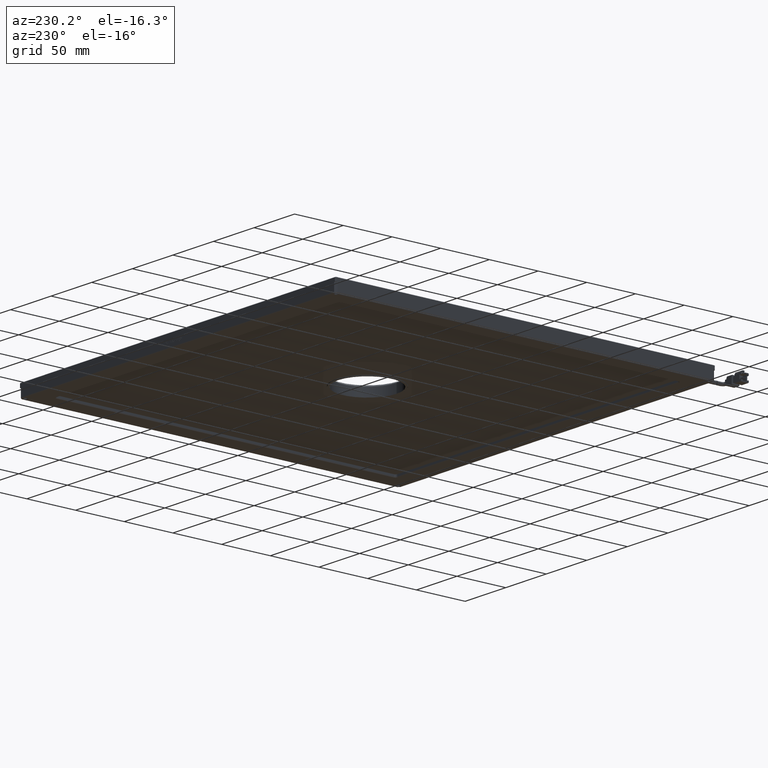
[diagram: clean part render]
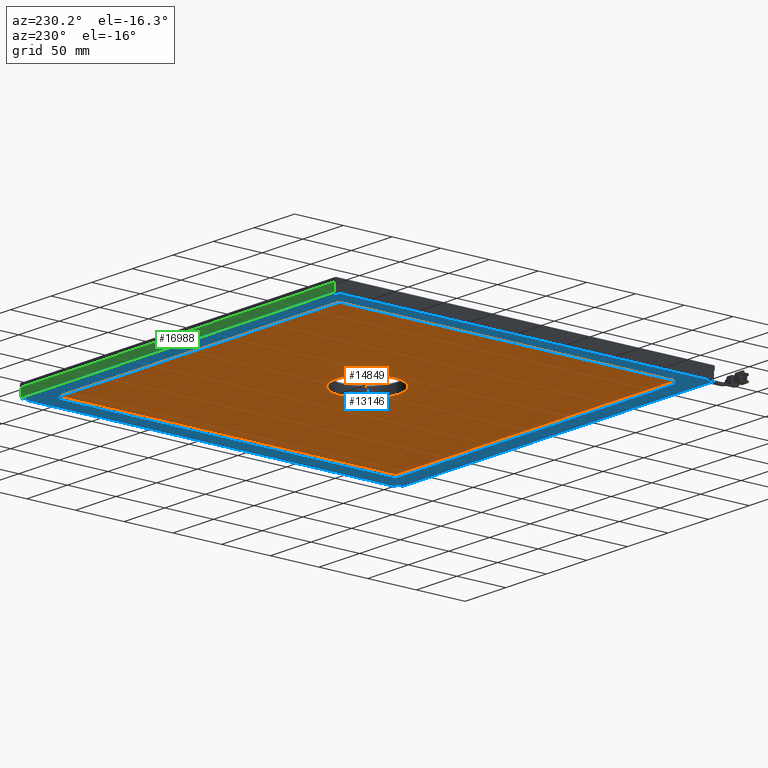
[diagram: same view with three faces highlighted in distinct colors, each labeled with its STEP entity id]
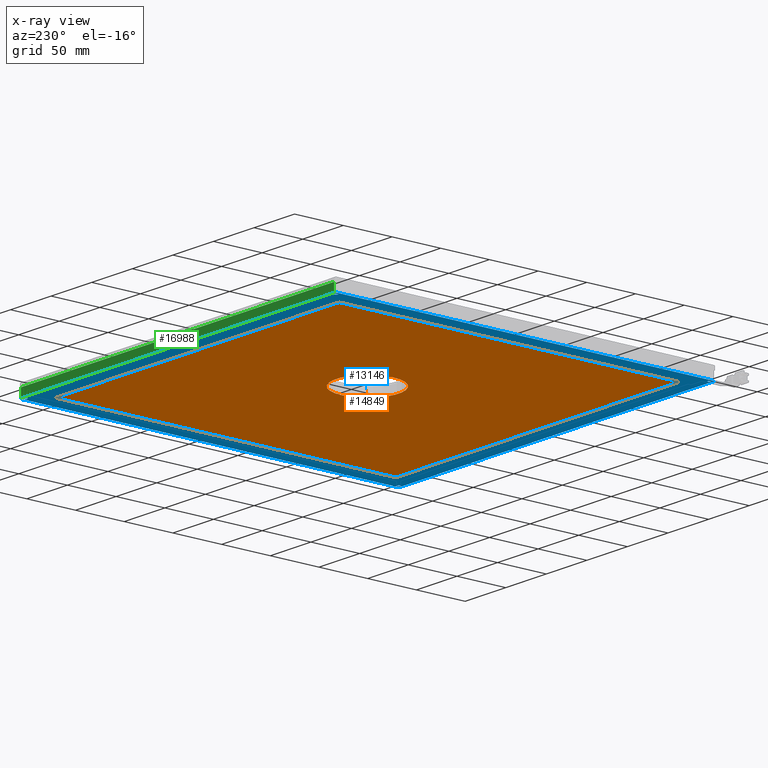
[diagram: x-ray of the same camera — body ghosted, the three highlighted faces saturated]
A machine part, auxiliary view with three faces highlighted in distinct colors.
The next image is the same camera in x-ray (body ghosted, the three faces saturated) — at least one of them is partly hidden behind the body in this view.
Their STEP definitions:

[orange] entity #14849 — the highlighted planar face has unit normal (0, -0, 1).
#88 = CARTESIAN_POINT ( 'NONE',  ( 146.8515982014608900, 201.4229729729716800, -1.750000000000003300 ) ) ;
#147 = CARTESIAN_POINT ( 'NONE',  ( -218.1484017985391100, 204.4229729729716500, -1.750000000000003300 ) ) ;
#606 = ORIENTED_EDGE ( 'NONE', *, *, #16970, .F. ) ;
#609 = EDGE_CURVE ( 'NONE', #14144, #17903, #8026, .T. ) ;
#638 = ORIENTED_EDGE ( 'NONE', *, *, #15592, .F. ) ;
#956 = DIRECTION ( 'NONE',  ( 0.0000000000000000000, -0.0000000000000000000, 1.000000000000000000 ) ) ;
#1628 = DIRECTION ( 'NONE',  ( -0.0000000000000000000, -0.0000000000000000000, 1.000000000000000000 ) ) ;
#1665 = ORIENTED_EDGE ( 'NONE', *, *, #13360, .F. ) ;
#1905 = DIRECTION ( 'NONE',  ( 1.000000000000000000, 0.0000000000000000000, 0.0000000000000000000 ) ) ;
#2080 = CARTESIAN_POINT ( 'NONE',  ( -215.1484017985391100, 201.4229729729716500, -1.750000000000003300 ) ) ;
#2157 = CARTESIAN_POINT ( 'NONE',  ( 149.8515982014608900, -160.5770270270282900, -1.750000000000003300 ) ) ;
#2232 = DIRECTION ( 'NONE',  ( -1.000000000000000000, 0.0000000000000000000, 0.0000000000000000000 ) ) ;
#2240 = AXIS2_PLACEMENT_3D ( 'NONE', #13960, #15433, #1905 ) ;
#2304 = CARTESIAN_POINT ( 'NONE',  ( -218.1484017985391100, 204.4229729729716800, -1.750000000000003300 ) ) ;
#3033 = ORIENTED_EDGE ( 'NONE', *, *, #8561, .F. ) ;
#3260 = DIRECTION ( 'NONE',  ( 1.000000000000000000, 0.0000000000000000000, 0.0000000000000000000 ) ) ;
#3487 = VERTEX_POINT ( 'NONE', #19599 ) ;
#4207 = CARTESIAN_POINT ( 'NONE',  ( -218.1484017985391100, 204.4229729729716500, -1.750000000000003300 ) ) ;
#4436 = VERTEX_POINT ( 'NONE', #12329 ) ;
#4961 = CIRCLE ( 'NONE', #12614, 3.000000000000002700 ) ;
#5361 = EDGE_LOOP ( 'NONE', ( #11833, #606 ) ) ;
#5413 = DIRECTION ( 'NONE',  ( 0.0000000000000000000, 1.000000000000000000, 0.0000000000000000000 ) ) ;
#5655 = VECTOR ( 'NONE', #17173, 1000.000000000000000 ) ;
#6738 = DIRECTION ( 'NONE',  ( -1.000000000000000000, 0.0000000000000000000, 0.0000000000000000000 ) ) ;
#6872 = VERTEX_POINT ( 'NONE', #14048 ) ;
#7073 = VECTOR ( 'NONE', #5413, 1000.000000000000000 ) ;
#7531 = LINE ( 'NONE', #147, #5655 ) ;
#7718 = CIRCLE ( 'NONE', #12429, 3.000000000000002700 ) ;
#7841 = AXIS2_PLACEMENT_3D ( 'NONE', #8359, #8500, #6738 ) ;
#8026 = CIRCLE ( 'NONE', #2240, 32.10000000000000100 ) ;
#8359 = CARTESIAN_POINT ( 'NONE',  ( 146.8515982014608900, -160.5770270270282900, -1.750000000000003300 ) ) ;
#8500 = DIRECTION ( 'NONE',  ( -0.0000000000000000000, -0.0000000000000000000, 1.000000000000000000 ) ) ;
#8561 = EDGE_CURVE ( 'NONE', #18263, #4436, #7531, .T. ) ;
#8754 = DIRECTION ( 'NONE',  ( -1.000000000000000000, 0.0000000000000000000, 0.0000000000000000000 ) ) ;
#8961 = CARTESIAN_POINT ( 'NONE',  ( -215.1484017985391100, -163.5770270270283500, -1.750000000000003300 ) ) ;
#9269 = PLANE ( 'NONE',  #17751 ) ;
#10050 = CARTESIAN_POINT ( 'NONE',  ( -218.1484017985391100, -163.5770270270283500, -1.750000000000003300 ) ) ;
#10130 = CARTESIAN_POINT ( 'NONE',  ( -215.1484017985391100, 204.4229729729716500, -1.750000000000003300 ) ) ;
#10693 = ORIENTED_EDGE ( 'NONE', *, *, #13380, .F. ) ;
#11327 = ORIENTED_EDGE ( 'NONE', *, *, #14073, .F. ) ;
#11546 = ORIENTED_EDGE ( 'NONE', *, *, #18652, .F. ) ;
#11609 = LINE ( 'NONE', #12324, #7073 ) ;
#11694 = CARTESIAN_POINT ( 'NONE',  ( -34.14840179853907600, 20.42297297297170300, -1.750000000000003300 ) ) ;
#11833 = ORIENTED_EDGE ( 'NONE', *, *, #609, .F. ) ;
#12324 = CARTESIAN_POINT ( 'NONE',  ( 149.8515982014608900, 204.4229729729716500, -1.750000000000003300 ) ) ;
#12329 = CARTESIAN_POINT ( 'NONE',  ( -218.1484017985391100, -160.5770270270283200, -1.750000000000003300 ) ) ;
#12409 = LINE ( 'NONE', #2304, #13776 ) ;
#12429 = AXIS2_PLACEMENT_3D ( 'NONE', #15006, #1628, #18756 ) ;
#12492 = DIRECTION ( 'NONE',  ( -1.000000000000000000, -0.0000000000000000000, 0.0000000000000000000 ) ) ;
#12500 = VECTOR ( 'NONE', #18808, 1000.000000000000000 ) ;
#12614 = AXIS2_PLACEMENT_3D ( 'NONE', #88, #19003, #8754 ) ;
#13360 = EDGE_CURVE ( 'NONE', #3487, #18200, #21861, .T. ) ;
#13380 = EDGE_CURVE ( 'NONE', #4436, #18595, #7718, .T. ) ;
#13481 = DIRECTION ( 'NONE',  ( 0.0000000000000000000, 0.0000000000000000000, -1.000000000000000000 ) ) ;
#13776 = VECTOR ( 'NONE', #12492, 1000.000000000000000 ) ;
#13960 = CARTESIAN_POINT ( 'NONE',  ( -34.14840179853907600, 20.42297297297170300, -1.750000000000003300 ) ) ;
#14048 = CARTESIAN_POINT ( 'NONE',  ( 146.8515982014608900, 204.4229729729716800, -1.750000000000003300 ) ) ;
#14073 = EDGE_CURVE ( 'NONE', #18595, #3487, #17570, .T. ) ;
#14144 = VERTEX_POINT ( 'NONE', #15416 ) ;
#14847 = EDGE_LOOP ( 'NONE', ( #638, #17271, #17705, #11546, #1665, #11327, #10693, #3033 ) ) ;
#14849 = ADVANCED_FACE ( 'NONE', ( #16147, #17747 ), #9269, .F. ) ;
#15006 = CARTESIAN_POINT ( 'NONE',  ( -215.1484017985391100, -160.5770270270283200, -1.750000000000003300 ) ) ;
#15416 = CARTESIAN_POINT ( 'NONE',  ( -2.048401798539073200, 20.42297297297170300, -1.750000000000003300 ) ) ;
#15433 = DIRECTION ( 'NONE',  ( 0.0000000000000000000, 0.0000000000000000000, -1.000000000000000000 ) ) ;
#15453 = EDGE_CURVE ( 'NONE', #19499, #6872, #4961, .T. ) ;
#15485 = EDGE_CURVE ( 'NONE', #6872, #20812, #12409, .T. ) ;
#15592 = EDGE_CURVE ( 'NONE', #20812, #18263, #19631, .T. ) ;
#15768 = CARTESIAN_POINT ( 'NONE',  ( -218.1484017985391100, 201.4229729729716500, -1.750000000000003300 ) ) ;
#15922 = DIRECTION ( 'NONE',  ( -0.0000000000000000000, -0.0000000000000000000, 1.000000000000000000 ) ) ;
#16147 = FACE_OUTER_BOUND ( 'NONE', #14847, .T. ) ;
#16970 = EDGE_CURVE ( 'NONE', #17903, #14144, #20534, .T. ) ;
#17173 = DIRECTION ( 'NONE',  ( -0.0000000000000000000, -1.000000000000000000, -0.0000000000000000000 ) ) ;
#17271 = ORIENTED_EDGE ( 'NONE', *, *, #15485, .F. ) ;
#17515 = AXIS2_PLACEMENT_3D ( 'NONE', #11694, #13481, #3260 ) ;
#17570 = LINE ( 'NONE', #10050, #12500 ) ;
#17705 = ORIENTED_EDGE ( 'NONE', *, *, #15453, .F. ) ;
#17747 = FACE_BOUND ( 'NONE', #5361, .T. ) ;
#17751 = AXIS2_PLACEMENT_3D ( 'NONE', #4207, #956, #21278 ) ;
#17903 = VERTEX_POINT ( 'NONE', #21109 ) ;
#18200 = VERTEX_POINT ( 'NONE', #2157 ) ;
#18263 = VERTEX_POINT ( 'NONE', #15768 ) ;
#18595 = VERTEX_POINT ( 'NONE', #8961 ) ;
#18652 = EDGE_CURVE ( 'NONE', #18200, #19499, #11609, .T. ) ;
#18756 = DIRECTION ( 'NONE',  ( -1.000000000000000000, 0.0000000000000000000, 0.0000000000000000000 ) ) ;
#18808 = DIRECTION ( 'NONE',  ( 1.000000000000000000, 0.0000000000000000000, -0.0000000000000000000 ) ) ;
#19003 = DIRECTION ( 'NONE',  ( -0.0000000000000000000, -0.0000000000000000000, 1.000000000000000000 ) ) ;
#19074 = AXIS2_PLACEMENT_3D ( 'NONE', #2080, #15922, #2232 ) ;
#19499 = VERTEX_POINT ( 'NONE', #21316 ) ;
#19599 = CARTESIAN_POINT ( 'NONE',  ( 146.8515982014608900, -163.5770270270283200, -1.750000000000003300 ) ) ;
#19631 = CIRCLE ( 'NONE', #19074, 3.000000000000002700 ) ;
#20534 = CIRCLE ( 'NONE', #17515, 32.10000000000000100 ) ;
#20812 = VERTEX_POINT ( 'NONE', #10130 ) ;
#21109 = CARTESIAN_POINT ( 'NONE',  ( -66.24840179853907800, 20.42297297297170600, -1.750000000000003300 ) ) ;
#21278 = DIRECTION ( 'NONE',  ( 1.000000000000000000, 0.0000000000000000000, -0.0000000000000000000 ) ) ;
#21316 = CARTESIAN_POINT ( 'NONE',  ( 149.8515982014608900, 201.4229729729717100, -1.750000000000003300 ) ) ;
#21861 = CIRCLE ( 'NONE', #7841, 3.000000000000002700 ) ;

[blue] entity #13146 — the highlighted planar face has unit normal (0, -0, 1).
#101 = CIRCLE ( 'NONE', #20144, 1.750000000000001600 ) ;
#228 = CIRCLE ( 'NONE', #10366, 1.750000000000001600 ) ;
#347 = EDGE_CURVE ( 'NONE', #5329, #415, #8572, .T. ) ;
#415 = VERTEX_POINT ( 'NONE', #2865 ) ;
#476 = CARTESIAN_POINT ( 'NONE',  ( -207.1484017985376900, -152.5770270270270100, -4.750000000056844300 ) ) ;
#563 = LINE ( 'NONE', #14424, #8798 ) ;
#659 = AXIS2_PLACEMENT_3D ( 'NONE', #4610, #14826, #8316 ) ;
#743 = CARTESIAN_POINT ( 'NONE',  ( 138.8515982014623700, -152.5770270270270100, -4.750000000056844300 ) ) ;
#874 = DIRECTION ( 'NONE',  ( 0.0000000000000000000, 0.0000000000000000000, -1.000000000000000000 ) ) ;
#1259 = ORIENTED_EDGE ( 'NONE', *, *, #12723, .F. ) ;
#1385 = CARTESIAN_POINT ( 'NONE',  ( 160.3515982014622500, 215.4229729729729600, -4.750000000000000900 ) ) ;
#1421 = VECTOR ( 'NONE', #18310, 1000.000000000000000 ) ;
#1531 = CARTESIAN_POINT ( 'NONE',  ( 159.1015982014623100, 211.9229729729730100, -4.750000000000000900 ) ) ;
#1617 = EDGE_CURVE ( 'NONE', #3136, #12626, #20742, .T. ) ;
#1768 = EDGE_LOOP ( 'NONE', ( #16857, #16411 ) ) ;
#1849 = EDGE_CURVE ( 'NONE', #14077, #12111, #228, .T. ) ;
#1964 = CARTESIAN_POINT ( 'NONE',  ( -228.6484017985376600, 213.2158661917865200, -4.750000000000002700 ) ) ;
#1978 = VECTOR ( 'NONE', #10180, 1000.000000000000000 ) ;
#2290 = CARTESIAN_POINT ( 'NONE',  ( -227.3984017985384000, 211.9229729729723600, -4.750000000000000900 ) ) ;
#2294 = DIRECTION ( 'NONE',  ( -0.0000000000000000000, -1.000000000000000000, -0.0000000000000000000 ) ) ;
#2314 = ORIENTED_EDGE ( 'NONE', *, *, #5176, .F. ) ;
#2398 = LINE ( 'NONE', #21380, #16511 ) ;
#2439 = CARTESIAN_POINT ( 'NONE',  ( -229.1484017985377200, 215.4229729729729600, -4.750000000000000900 ) ) ;
#2506 = DIRECTION ( 'NONE',  ( -1.000000000000000000, 0.0000000000000000000, 0.0000000000000000000 ) ) ;
#2518 = DIRECTION ( 'NONE',  ( 0.0000000000000000000, 0.0000000000000000000, -1.000000000000000000 ) ) ;
#2571 = CARTESIAN_POINT ( 'NONE',  ( -228.6484017985376600, -172.3699202458403500, -4.750000000000000900 ) ) ;
#2637 = AXIS2_PLACEMENT_3D ( 'NONE', #12709, #2518, #17939 ) ;
#2865 = CARTESIAN_POINT ( 'NONE',  ( 138.8515982014623700, 195.9229729730003600, -4.749999999943157500 ) ) ;
#2987 = DIRECTION ( 'NONE',  ( 0.0000000000000000000, 1.000000000000000000, 0.0000000000000000000 ) ) ;
#2997 = DIRECTION ( 'NONE',  ( 0.0000000000000000000, 1.000000000000000000, 0.0000000000000000000 ) ) ;
#3081 = CARTESIAN_POINT ( 'NONE',  ( -229.1484017985377200, 195.9229729729730700, -4.750000000000000900 ) ) ;
#3136 = VERTEX_POINT ( 'NONE', #19899 ) ;
#3195 = CARTESIAN_POINT ( 'NONE',  ( 158.6444914202759000, -174.0770270270269300, -4.750000000000000900 ) ) ;
#3250 = EDGE_CURVE ( 'NONE', #16076, #14213, #7501, .T. ) ;
#3253 = CARTESIAN_POINT ( 'NONE',  ( -226.9412950173511900, 214.9229729729729000, -4.750000000000000900 ) ) ;
#3268 = ORIENTED_EDGE ( 'NONE', *, *, #7056, .F. ) ;
#3302 = DIRECTION ( 'NONE',  ( 0.7071067811865474600, 0.7071067811865474600, 0.0000000000000000000 ) ) ;
#3391 = EDGE_CURVE ( 'NONE', #12379, #19166, #15467, .T. ) ;
#3886 = CIRCLE ( 'NONE', #17451, 1.750000000000001600 ) ;
#3938 = EDGE_CURVE ( 'NONE', #6854, #5961, #18392, .T. ) ;
#4044 = EDGE_LOOP ( 'NONE', ( #16372, #16719, #3268, #2314, #20625, #5483, #19252, #8818 ) ) ;
#4216 = DIRECTION ( 'NONE',  ( -1.000000000000000000, -0.0000000000000000000, 0.0000000000000000000 ) ) ;
#4290 = LINE ( 'NONE', #5738, #19772 ) ;
#4398 = VECTOR ( 'NONE', #2294, 1000.000000000000000 ) ;
#4505 = EDGE_LOOP ( 'NONE', ( #5030, #6357, #12847, #13139, #14622, #15279, #16363, #8766 ) ) ;
#4582 = VERTEX_POINT ( 'NONE', #4722 ) ;
#4610 = CARTESIAN_POINT ( 'NONE',  ( 138.8515982014623700, 193.4229729729730700, -4.749999999943157500 ) ) ;
#4722 = CARTESIAN_POINT ( 'NONE',  ( 141.3515982014339200, 193.4229729729730700, -4.749999999971575600 ) ) ;
#4817 = CARTESIAN_POINT ( 'NONE',  ( 138.8515982014623900, -155.0770270270553800, -4.750000000028419000 ) ) ;
#4901 = EDGE_CURVE ( 'NONE', #19632, #13053, #15067, .T. ) ;
#5030 = ORIENTED_EDGE ( 'NONE', *, *, #1617, .F. ) ;
#5176 = EDGE_CURVE ( 'NONE', #14213, #11303, #19623, .T. ) ;
#5208 = CIRCLE ( 'NONE', #19187, 1.750000000000001600 ) ;
#5292 = EDGE_LOOP ( 'NONE', ( #14110, #14879 ) ) ;
#5328 = CIRCLE ( 'NONE', #659, 2.499999999995977400 ) ;
#5329 = VERTEX_POINT ( 'NONE', #14267 ) ;
#5483 = ORIENTED_EDGE ( 'NONE', *, *, #12753, .F. ) ;
#5594 = DIRECTION ( 'NONE',  ( 1.000000000000000000, 0.0000000000000000000, 0.0000000000000000000 ) ) ;
#5722 = CIRCLE ( 'NONE', #8651, 2.500000000056401600 ) ;
#5738 = CARTESIAN_POINT ( 'NONE',  ( 160.3515982014622500, 213.2158661917865200, -4.750000000000000900 ) ) ;
#5805 = EDGE_CURVE ( 'NONE', #15736, #21188, #5208, .T. ) ;
#5807 = VECTOR ( 'NONE', #18071, 1000.000000000000100 ) ;
#5961 = VERTEX_POINT ( 'NONE', #9430 ) ;
#6357 = ORIENTED_EDGE ( 'NONE', *, *, #12435, .F. ) ;
#6588 = VERTEX_POINT ( 'NONE', #8222 ) ;
#6622 = CARTESIAN_POINT ( 'NONE',  ( -209.6484017985365300, 193.4229729729730700, -4.750000000000000900 ) ) ;
#6634 = VERTEX_POINT ( 'NONE', #4817 ) ;
#6854 = VERTEX_POINT ( 'NONE', #2290 ) ;
#7056 = EDGE_CURVE ( 'NONE', #11303, #6588, #19165, .T. ) ;
#7430 = CARTESIAN_POINT ( 'NONE',  ( -228.6484017985376600, -172.3699202458403800, -4.749999999999997300 ) ) ;
#7449 = CARTESIAN_POINT ( 'NONE',  ( -225.6484017985377200, -171.0770270270269900, -4.750000000000000900 ) ) ;
#7501 = LINE ( 'NONE', #3253, #14433 ) ;
#7555 = VECTOR ( 'NONE', #2997, 1000.000000000000000 ) ;
#7693 = VERTEX_POINT ( 'NONE', #11018 ) ;
#7743 = FACE_BOUND ( 'NONE', #10280, .T. ) ;
#8222 = CARTESIAN_POINT ( 'NONE',  ( -226.9412950173510000, -174.0770270270269900, -4.750000000000015100 ) ) ;
#8308 = CARTESIAN_POINT ( 'NONE',  ( -229.1484017985377200, 214.9229729729729600, -4.750000000000000900 ) ) ;
#8316 = DIRECTION ( 'NONE',  ( -1.000000000000000000, 0.0000000000000000000, 0.0000000000000000000 ) ) ;
#8388 = VECTOR ( 'NONE', #3302, 1000.000000000000100 ) ;
#8396 = CIRCLE ( 'NONE', #15149, 2.499999999999558100 ) ;
#8547 = CARTESIAN_POINT ( 'NONE',  ( 155.6015982014623100, 211.9229729729730100, -4.750000000000000900 ) ) ;
#8572 = LINE ( 'NONE', #3081, #1421 ) ;
#8651 = AXIS2_PLACEMENT_3D ( 'NONE', #476, #12376, #17511 ) ;
#8766 = ORIENTED_EDGE ( 'NONE', *, *, #14807, .F. ) ;
#8798 = VECTOR ( 'NONE', #4216, 1000.000000000000000 ) ;
#8818 = ORIENTED_EDGE ( 'NONE', *, *, #19082, .F. ) ;
#8824 = DIRECTION ( 'NONE',  ( 1.000000000000000000, 0.0000000000000000000, 0.0000000000000000000 ) ) ;
#9074 = CARTESIAN_POINT ( 'NONE',  ( 159.1015982014643000, -171.0770270270250000, -4.750000000000000900 ) ) ;
#9114 = DIRECTION ( 'NONE',  ( 0.0000000000000000000, 0.0000000000000000000, -1.000000000000000000 ) ) ;
#9195 = VERTEX_POINT ( 'NONE', #13954 ) ;
#9338 = FACE_BOUND ( 'NONE', #20401, .T. ) ;
#9418 = CARTESIAN_POINT ( 'NONE',  ( -207.1484017985376900, 193.4229729729730700, -4.750000000000000900 ) ) ;
#9427 = CARTESIAN_POINT ( 'NONE',  ( -227.3984017985377200, -171.0770270270269900, -4.750000000000000900 ) ) ;
#9430 = CARTESIAN_POINT ( 'NONE',  ( -223.8984017985384000, 211.9229729729723600, -4.750000000000000900 ) ) ;
#9723 = CARTESIAN_POINT ( 'NONE',  ( -223.8984017985376900, -171.0770270270269900, -4.750000000000000900 ) ) ;
#9731 = EDGE_CURVE ( 'NONE', #21188, #15736, #101, .T. ) ;
#9884 = CARTESIAN_POINT ( 'NONE',  ( -229.1484017985377200, -174.0770270270269900, -4.750000000000000900 ) ) ;
#10134 = CARTESIAN_POINT ( 'NONE',  ( -207.1484017985376900, -155.0770270270399500, -4.750000000014211700 ) ) ;
#10180 = DIRECTION ( 'NONE',  ( -1.000000000000000000, -0.0000000000000000000, 0.0000000000000000000 ) ) ;
#10280 = EDGE_LOOP ( 'NONE', ( #20035, #1259 ) ) ;
#10366 = AXIS2_PLACEMENT_3D ( 'NONE', #20788, #17577, #5594 ) ;
#10605 = CIRCLE ( 'NONE', #20948, 2.499999999995977400 ) ;
#10771 = DIRECTION ( 'NONE',  ( 0.0000000000000000000, 0.0000000000000000000, -1.000000000000000000 ) ) ;
#10829 = AXIS2_PLACEMENT_3D ( 'NONE', #15262, #18497, #21991 ) ;
#11010 = EDGE_CURVE ( 'NONE', #415, #4582, #5328, .T. ) ;
#11018 = CARTESIAN_POINT ( 'NONE',  ( 160.3515982014623100, 213.2158661917865200, -4.750000000000006200 ) ) ;
#11021 = EDGE_CURVE ( 'NONE', #6588, #19632, #20771, .T. ) ;
#11303 = VERTEX_POINT ( 'NONE', #7430 ) ;
#11458 = ORIENTED_EDGE ( 'NONE', *, *, #9731, .F. ) ;
#11884 = CARTESIAN_POINT ( 'NONE',  ( 158.6444914202759000, -174.0770270270268700, -4.750000000000000900 ) ) ;
#11996 = DIRECTION ( 'NONE',  ( 1.000000000000000000, 0.0000000000000000000, 0.0000000000000000000 ) ) ;
#12111 = VERTEX_POINT ( 'NONE', #1531 ) ;
#12285 = FACE_BOUND ( 'NONE', #5292, .T. ) ;
#12376 = DIRECTION ( 'NONE',  ( 0.0000000000000000000, 0.0000000000000000000, -1.000000000000000000 ) ) ;
#12379 = VERTEX_POINT ( 'NONE', #9074 ) ;
#12435 = EDGE_CURVE ( 'NONE', #19241, #3136, #5722, .T. ) ;
#12626 = VERTEX_POINT ( 'NONE', #6622 ) ;
#12709 = CARTESIAN_POINT ( 'NONE',  ( 157.3515982014623100, 211.9229729729730100, -4.750000000000000900 ) ) ;
#12723 = EDGE_CURVE ( 'NONE', #19166, #12379, #19291, .T. ) ;
#12753 = EDGE_CURVE ( 'NONE', #9195, #16076, #16082, .T. ) ;
#12786 = PLANE ( 'NONE',  #17554 ) ;
#12825 = AXIS2_PLACEMENT_3D ( 'NONE', #14130, #10771, #17709 ) ;
#12847 = ORIENTED_EDGE ( 'NONE', *, *, #13194, .F. ) ;
#12904 = VERTEX_POINT ( 'NONE', #20043 ) ;
#13053 = VERTEX_POINT ( 'NONE', #18414 ) ;
#13139 = ORIENTED_EDGE ( 'NONE', *, *, #17315, .F. ) ;
#13146 = ADVANCED_FACE ( 'NONE', ( #19768, #13894, #12285, #17338, #9338, #7743 ), #12786, .F. ) ;
#13194 = EDGE_CURVE ( 'NONE', #6634, #19241, #563, .T. ) ;
#13627 = DIRECTION ( 'NONE',  ( -0.7071067811865532300, -0.7071067811865416900, 0.0000000000000000000 ) ) ;
#13894 = FACE_BOUND ( 'NONE', #4505, .T. ) ;
#13954 = CARTESIAN_POINT ( 'NONE',  ( 158.6444914202758400, 214.9229729729729300, -4.750000000000014200 ) ) ;
#14077 = VERTEX_POINT ( 'NONE', #8547 ) ;
#14110 = ORIENTED_EDGE ( 'NONE', *, *, #15717, .F. ) ;
#14130 = CARTESIAN_POINT ( 'NONE',  ( 157.3515982014643000, -171.0770270270250000, -4.750000000000000900 ) ) ;
#14188 = CARTESIAN_POINT ( 'NONE',  ( -228.6484017985376600, 215.4229729729729600, -4.750000000000000900 ) ) ;
#14213 = VERTEX_POINT ( 'NONE', #1964 ) ;
#14267 = CARTESIAN_POINT ( 'NONE',  ( -207.1484017985376900, 195.9229729729719300, -4.750000000000000900 ) ) ;
#14424 = CARTESIAN_POINT ( 'NONE',  ( -229.1484017985377200, -155.0770270270269600, -4.750000000000000900 ) ) ;
#14433 = VECTOR ( 'NONE', #13627, 1000.000000000000100 ) ;
#14622 = ORIENTED_EDGE ( 'NONE', *, *, #16868, .F. ) ;
#14752 = EDGE_CURVE ( 'NONE', #5961, #6854, #3886, .T. ) ;
#14802 = CIRCLE ( 'NONE', #2637, 1.750000000000001600 ) ;
#14807 = EDGE_CURVE ( 'NONE', #12626, #5329, #8396, .T. ) ;
#14826 = DIRECTION ( 'NONE',  ( 0.0000000000000000000, 0.0000000000000000000, -1.000000000000000000 ) ) ;
#14879 = ORIENTED_EDGE ( 'NONE', *, *, #1849, .F. ) ;
#15016 = LINE ( 'NONE', #1385, #7555 ) ;
#15067 = LINE ( 'NONE', #11884, #8388 ) ;
#15149 = AXIS2_PLACEMENT_3D ( 'NONE', #9418, #874, #21129 ) ;
#15262 = CARTESIAN_POINT ( 'NONE',  ( -225.6484017985384000, 211.9229729729723600, -4.750000000000000900 ) ) ;
#15279 = ORIENTED_EDGE ( 'NONE', *, *, #11010, .F. ) ;
#15467 = CIRCLE ( 'NONE', #12825, 1.750000000000001600 ) ;
#15717 = EDGE_CURVE ( 'NONE', #12111, #14077, #14802, .T. ) ;
#15736 = VERTEX_POINT ( 'NONE', #9427 ) ;
#15845 = CARTESIAN_POINT ( 'NONE',  ( -225.6484017985384000, 211.9229729729723600, -4.750000000000000900 ) ) ;
#15948 = DIRECTION ( 'NONE',  ( 0.0000000000000000000, 0.0000000000000000000, -1.000000000000000000 ) ) ;
#16076 = VERTEX_POINT ( 'NONE', #18980 ) ;
#16082 = LINE ( 'NONE', #8308, #1978 ) ;
#16086 = DIRECTION ( 'NONE',  ( -0.7071067811865474600, 0.7071067811865474600, 0.0000000000000000000 ) ) ;
#16134 = DIRECTION ( 'NONE',  ( 1.000000000000000000, 0.0000000000000000000, 0.0000000000000000000 ) ) ;
#16228 = VECTOR ( 'NONE', #18280, 1000.000000000000000 ) ;
#16363 = ORIENTED_EDGE ( 'NONE', *, *, #347, .F. ) ;
#16372 = ORIENTED_EDGE ( 'NONE', *, *, #4901, .F. ) ;
#16411 = ORIENTED_EDGE ( 'NONE', *, *, #3938, .F. ) ;
#16511 = VECTOR ( 'NONE', #21307, 1000.000000000000000 ) ;
#16607 = EDGE_CURVE ( 'NONE', #7693, #9195, #4290, .T. ) ;
#16719 = ORIENTED_EDGE ( 'NONE', *, *, #11021, .F. ) ;
#16857 = ORIENTED_EDGE ( 'NONE', *, *, #14752, .F. ) ;
#16868 = EDGE_CURVE ( 'NONE', #4582, #12904, #2398, .T. ) ;
#17315 = EDGE_CURVE ( 'NONE', #12904, #6634, #10605, .T. ) ;
#17338 = FACE_BOUND ( 'NONE', #1768, .T. ) ;
#17451 = AXIS2_PLACEMENT_3D ( 'NONE', #15845, #19288, #8824 ) ;
#17511 = DIRECTION ( 'NONE',  ( -1.000000000000000000, 0.0000000000000000000, 0.0000000000000000000 ) ) ;
#17554 = AXIS2_PLACEMENT_3D ( 'NONE', #2439, #18021, #19671 ) ;
#17577 = DIRECTION ( 'NONE',  ( 0.0000000000000000000, 0.0000000000000000000, -1.000000000000000000 ) ) ;
#17709 = DIRECTION ( 'NONE',  ( 1.000000000000000000, 0.0000000000000000000, 0.0000000000000000000 ) ) ;
#17939 = DIRECTION ( 'NONE',  ( 1.000000000000000000, 0.0000000000000000000, 0.0000000000000000000 ) ) ;
#18021 = DIRECTION ( 'NONE',  ( 0.0000000000000000000, -0.0000000000000000000, 1.000000000000000000 ) ) ;
#18071 = DIRECTION ( 'NONE',  ( 0.7071067811865647800, -0.7071067811865302500, 0.0000000000000000000 ) ) ;
#18280 = DIRECTION ( 'NONE',  ( 1.000000000000000000, 0.0000000000000000000, -0.0000000000000000000 ) ) ;
#18289 = CARTESIAN_POINT ( 'NONE',  ( -209.6484017985376600, 215.4229729729729600, -4.750000000000000900 ) ) ;
#18310 = DIRECTION ( 'NONE',  ( 1.000000000000000000, 0.0000000000000000000, -0.0000000000000000000 ) ) ;
#18392 = CIRCLE ( 'NONE', #10829, 1.750000000000001600 ) ;
#18414 = CARTESIAN_POINT ( 'NONE',  ( 160.3515982014622500, -172.3699202458405200, -4.750000000000000900 ) ) ;
#18497 = DIRECTION ( 'NONE',  ( 0.0000000000000000000, 0.0000000000000000000, -1.000000000000000000 ) ) ;
#18633 = DIRECTION ( 'NONE',  ( 0.0000000000000000000, 0.0000000000000000000, -1.000000000000000000 ) ) ;
#18704 = CARTESIAN_POINT ( 'NONE',  ( 157.3515982014643000, -171.0770270270250000, -4.750000000000000900 ) ) ;
#18973 = AXIS2_PLACEMENT_3D ( 'NONE', #18704, #18633, #11996 ) ;
#18980 = CARTESIAN_POINT ( 'NONE',  ( -226.9412950173511900, 214.9229729729729000, -4.750000000000000900 ) ) ;
#19082 = EDGE_CURVE ( 'NONE', #13053, #7693, #15016, .T. ) ;
#19165 = LINE ( 'NONE', #2571, #5807 ) ;
#19166 = VERTEX_POINT ( 'NONE', #20592 ) ;
#19187 = AXIS2_PLACEMENT_3D ( 'NONE', #7449, #15948, #21173 ) ;
#19241 = VERTEX_POINT ( 'NONE', #10134 ) ;
#19252 = ORIENTED_EDGE ( 'NONE', *, *, #16607, .F. ) ;
#19288 = DIRECTION ( 'NONE',  ( 0.0000000000000000000, 0.0000000000000000000, -1.000000000000000000 ) ) ;
#19291 = CIRCLE ( 'NONE', #18973, 1.750000000000001600 ) ;
#19598 = CARTESIAN_POINT ( 'NONE',  ( -225.6484017985377200, -171.0770270270269900, -4.750000000000000900 ) ) ;
#19623 = LINE ( 'NONE', #14188, #4398 ) ;
#19632 = VERTEX_POINT ( 'NONE', #3195 ) ;
#19671 = DIRECTION ( 'NONE',  ( 1.000000000000000000, 0.0000000000000000000, -0.0000000000000000000 ) ) ;
#19768 = FACE_OUTER_BOUND ( 'NONE', #4044, .T. ) ;
#19772 = VECTOR ( 'NONE', #16086, 1000.000000000000100 ) ;
#19899 = CARTESIAN_POINT ( 'NONE',  ( -209.6484017985660800, -152.5770270270270100, -4.750000000028422600 ) ) ;
#19977 = VECTOR ( 'NONE', #2987, 1000.000000000000000 ) ;
#20035 = ORIENTED_EDGE ( 'NONE', *, *, #3391, .F. ) ;
#20043 = CARTESIAN_POINT ( 'NONE',  ( 141.3515982014480100, -152.5770270270270100, -4.750000000014211700 ) ) ;
#20144 = AXIS2_PLACEMENT_3D ( 'NONE', #19598, #21137, #16134 ) ;
#20401 = EDGE_LOOP ( 'NONE', ( #11458, #21923 ) ) ;
#20592 = CARTESIAN_POINT ( 'NONE',  ( 155.6015982014643000, -171.0770270270250000, -4.750000000000000900 ) ) ;
#20625 = ORIENTED_EDGE ( 'NONE', *, *, #3250, .F. ) ;
#20742 = LINE ( 'NONE', #18289, #19977 ) ;
#20771 = LINE ( 'NONE', #9884, #16228 ) ;
#20788 = CARTESIAN_POINT ( 'NONE',  ( 157.3515982014623100, 211.9229729729730100, -4.750000000000000900 ) ) ;
#20948 = AXIS2_PLACEMENT_3D ( 'NONE', #743, #9114, #2506 ) ;
#21129 = DIRECTION ( 'NONE',  ( -1.000000000000000000, 0.0000000000000000000, 0.0000000000000000000 ) ) ;
#21137 = DIRECTION ( 'NONE',  ( 0.0000000000000000000, 0.0000000000000000000, -1.000000000000000000 ) ) ;
#21173 = DIRECTION ( 'NONE',  ( 1.000000000000000000, 0.0000000000000000000, 0.0000000000000000000 ) ) ;
#21188 = VERTEX_POINT ( 'NONE', #9723 ) ;
#21307 = DIRECTION ( 'NONE',  ( -0.0000000000000000000, -1.000000000000000000, -0.0000000000000000000 ) ) ;
#21380 = CARTESIAN_POINT ( 'NONE',  ( 141.3515982014623400, 215.4229729729729600, -4.750000000000000900 ) ) ;
#21923 = ORIENTED_EDGE ( 'NONE', *, *, #5805, .F. ) ;
#21991 = DIRECTION ( 'NONE',  ( 1.000000000000000000, 0.0000000000000000000, 0.0000000000000000000 ) ) ;

[green] entity #16988 — the highlighted planar face has unit normal (0, -1, 0).
#22 = CARTESIAN_POINT ( 'NONE',  ( -20.04567694938189600, 215.4229729729729900, -0.3525222033905484100 ) ) ;
#57 = EDGE_CURVE ( 'NONE', #18799, #10318, #21847, .T. ) ;
#66 = CARTESIAN_POINT ( 'NONE',  ( -39.00380568337389100, 215.4229729729729900, 1.980758486460843000 ) ) ;
#94 = EDGE_CURVE ( 'NONE', #2852, #15772, #5123, .T. ) ;
#110 = ORIENTED_EDGE ( 'NONE', *, *, #5181, .F. ) ;
#142 = CARTESIAN_POINT ( 'NONE',  ( -39.40765692073453200, 215.4229729729729900, 1.980758486460843000 ) ) ;
#158 = VECTOR ( 'NONE', #20402, 1000.000000000000000 ) ;
#186 = VERTEX_POINT ( 'NONE', #6078 ) ;
#197 = CARTESIAN_POINT ( 'NONE',  ( -20.39382459675879000, 215.4229729729729900, 1.220682907480230600 ) ) ;
#216 = CARTESIAN_POINT ( 'NONE',  ( -227.1484017985377800, 215.4229729729729600, 4.250000000000000000 ) ) ;
#235 = VECTOR ( 'NONE', #3712, 1000.000000000000000 ) ;
#245 = ORIENTED_EDGE ( 'NONE', *, *, #17617, .F. ) ;
#257 = CARTESIAN_POINT ( 'NONE',  ( -20.38402876117204300, 215.4229729729729900, -0.8095496506593247200 ) ) ;
#286 = EDGE_CURVE ( 'NONE', #3973, #21312, #13880, .T. ) ;
#312 = VECTOR ( 'NONE', #5174, 1000.000000000000000 ) ;
#319 = B_SPLINE_CURVE_WITH_KNOTS ( 'NONE', 3,
 ( #2458, #14444, #4159, #612 ),
 .UNSPECIFIED., .F., .F.,
 ( 4, 4 ),
 ( 11.00000000000000000, 12.00000000000000000 ),
 .UNSPECIFIED. ) ;
#334 = CARTESIAN_POINT ( 'NONE',  ( -28.83223725224829100, 215.4229729729729900, -0.7676891855430412200 ) ) ;
#368 = CARTESIAN_POINT ( 'NONE',  ( -35.34725888556347700, 215.4229729729729900, -0.7745645235636144900 ) ) ;
#429 = CARTESIAN_POINT ( 'NONE',  ( -21.45792005376265600, 215.4229729729729900, -0.06652639484538980200 ) ) ;
#475 = B_SPLINE_CURVE_WITH_KNOTS ( 'NONE', 3,
 ( #4807, #6602, #11828, #10009 ),
 .UNSPECIFIED., .F., .F.,
 ( 4, 4 ),
 ( 1.000000000000000000, 2.000000000000000000 ),
 .UNSPECIFIED. ) ;
#520 = LINE ( 'NONE', #10957, #11974 ) ;
#558 = VERTEX_POINT ( 'NONE', #11882 ) ;
#584 = CARTESIAN_POINT ( 'NONE',  ( -35.69552822033914200, 215.4229729729729900, -0.3909449994965452600 ) ) ;
#593 = CARTESIAN_POINT ( 'NONE',  ( -20.32549712244832900, 215.4229729729729900, 0.1323108144569429300 ) ) ;
#612 = CARTESIAN_POINT ( 'NONE',  ( -34.64749549994969200, 215.4229729729729900, 1.513706163294159500 ) ) ;
#619 = B_SPLINE_CURVE_WITH_KNOTS ( 'NONE', 3,
 ( #14573, #12942, #16063, #813 ),
 .UNSPECIFIED., .F., .F.,
 ( 4, 4 ),
 ( 2.000000000000000000, 3.000000000000000000 ),
 .UNSPECIFIED. ) ;
#622 = CARTESIAN_POINT ( 'NONE',  ( -20.69646115706161600, 215.4229729729729900, -0.1921077901942125400 ) ) ;
#666 = CARTESIAN_POINT ( 'NONE',  ( -24.39660988610439700, 215.4229729729729900, -0.7781543018220982200 ) ) ;
#714 = ORIENTED_EDGE ( 'NONE', *, *, #21259, .F. ) ;
#741 = CARTESIAN_POINT ( 'NONE',  ( -33.41741843126391800, 215.4229729729729900, -0.7781543018220982200 ) ) ;
#766 = DIRECTION ( 'NONE',  ( -0.0000000000000000000, -0.0000000000000000000, 1.000000000000000000 ) ) ;
#791 = CARTESIAN_POINT ( 'NONE',  ( -32.94880025927906800, 215.4229729729729900, -0.7781543018220982200 ) ) ;
#803 = EDGE_CURVE ( 'NONE', #2224, #20421, #18731, .T. ) ;
#813 = CARTESIAN_POINT ( 'NONE',  ( -20.39382459675879000, 215.4229729729729900, 1.220682907480230600 ) ) ;
#828 = EDGE_CURVE ( 'NONE', #1374, #13963, #6443, .T. ) ;
#856 = VECTOR ( 'NONE', #4584, 1000.000000000000000 ) ;
#897 = ORIENTED_EDGE ( 'NONE', *, *, #19212, .F. ) ;
#901 = CARTESIAN_POINT ( 'NONE',  ( -28.43839598669931600, 215.4229729729729900, 0.3625433725964744000 ) ) ;
#908 = CARTESIAN_POINT ( 'NONE',  ( -32.94880025927906800, 215.4229729729729900, 0.6346363958523171300 ) ) ;
#936 = DIRECTION ( 'NONE',  ( -0.0000000000000000000, -0.0000000000000000000, -1.000000000000000000 ) ) ;
#989 = DIRECTION ( 'NONE',  ( 1.000000000000000000, -0.0000000000000000000, -0.0000000000000000000 ) ) ;
#995 = EDGE_CURVE ( 'NONE', #21312, #18603, #15569, .T. ) ;
#1011 = CARTESIAN_POINT ( 'NONE',  ( -22.38542140584473800, 215.4229729729729900, -0.8095496506593247200 ) ) ;
#1045 = VERTEX_POINT ( 'NONE', #22115 ) ;
#1151 = DIRECTION ( 'NONE',  ( -0.0000000000000000000, -0.0000000000000000000, -1.000000000000000000 ) ) ;
#1170 = ORIENTED_EDGE ( 'NONE', *, *, #13660, .F. ) ;
#1177 = DIRECTION ( 'NONE',  ( -0.0000000000000000000, -0.0000000000000000000, 1.000000000000000000 ) ) ;
#1224 = CARTESIAN_POINT ( 'NONE',  ( -22.35615558648299500, 215.4229729729729900, -0.4851310460081692500 ) ) ;
#1250 = CARTESIAN_POINT ( 'NONE',  ( -27.68667208188588400, 215.4229729729729900, 0.6869619772476576200 ) ) ;
#1374 = VERTEX_POINT ( 'NONE', #3821 ) ;
#1378 = CARTESIAN_POINT ( 'NONE',  ( -36.26003297673055700, 215.4229729729729900, -1.166926694210035400 ) ) ;
#1380 = CARTESIAN_POINT ( 'NONE',  ( -27.23758473737539600, 215.4229729729729900, 0.6869619772476576200 ) ) ;
#1393 = ORIENTED_EDGE ( 'NONE', *, *, #8632, .F. ) ;
#1407 = CARTESIAN_POINT ( 'NONE',  ( -34.28967370438449100, 215.4229729729729900, -0.3804798832174605100 ) ) ;
#1416 = ORIENTED_EDGE ( 'NONE', *, *, #12241, .F. ) ;
#1426 = CARTESIAN_POINT ( 'NONE',  ( -31.99203308783507500, 215.4229729729729900, 0.6346363958523171300 ) ) ;
#1433 = EDGE_CURVE ( 'NONE', #2154, #16347, #4232, .T. ) ;
#1478 = ORIENTED_EDGE ( 'NONE', *, *, #57, .F. ) ;
#1510 = ORIENTED_EDGE ( 'NONE', *, *, #5910, .F. ) ;
#1536 = LINE ( 'NONE', #9931, #12978 ) ;
#1548 = VERTEX_POINT ( 'NONE', #11407 ) ;
#1562 = EDGE_CURVE ( 'NONE', #10490, #14103, #10132, .T. ) ;
#1574 = ORIENTED_EDGE ( 'NONE', *, *, #10360, .F. ) ;
#1603 = CARTESIAN_POINT ( 'NONE',  ( -34.67682216301074000, 215.4229729729729900, -0.8095496506593247200 ) ) ;
#1651 = CARTESIAN_POINT ( 'NONE',  ( -36.26003297673055700, 215.4229729729729900, -0.7630448680717161200 ) ) ;
#1656 = EDGE_CURVE ( 'NONE', #10831, #1548, #2892, .T. ) ;
#1660 = EDGE_CURVE ( 'NONE', #20359, #5490, #7942, .T. ) ;
#1698 = ORIENTED_EDGE ( 'NONE', *, *, #8366, .F. ) ;
#1711 = CARTESIAN_POINT ( 'NONE',  ( -24.12323914516326400, 215.4229729729729900, -0.7781543018220982200 ) ) ;
#1783 = CARTESIAN_POINT ( 'NONE',  ( -36.26003297673055700, 215.4229729729729900, -0.7630448680717161200 ) ) ;
#1837 = ORIENTED_EDGE ( 'NONE', *, *, #17590, .F. ) ;
#1951 = ORIENTED_EDGE ( 'NONE', *, *, #4409, .F. ) ;
#1987 = CARTESIAN_POINT ( 'NONE',  ( -39.61561569222257600, 215.4229729729729900, -0.6406999872131669000 ) ) ;
#2111 = CARTESIAN_POINT ( 'NONE',  ( -29.48302145992801500, 215.4229729729729900, -0.8095496506593247200 ) ) ;
#2154 = VERTEX_POINT ( 'NONE', #11462 ) ;
#2168 = CARTESIAN_POINT ( 'NONE',  ( -19.52491572709944400, 215.4229729729729900, -0.1083868599616455400 ) ) ;
#2224 = VERTEX_POINT ( 'NONE', #14590 ) ;
#2242 = VERTEX_POINT ( 'NONE', #4394 ) ;
#2272 = ORIENTED_EDGE ( 'NONE', *, *, #13317, .F. ) ;
#2284 = VERTEX_POINT ( 'NONE', #18626 ) ;
#2321 = CARTESIAN_POINT ( 'NONE',  ( -36.26003297673055700, 215.4229729729729900, 1.772769131143797600 ) ) ;
#2323 = B_SPLINE_CURVE_WITH_KNOTS ( 'NONE', 3,
 ( #4161, #2609, #19692, #14592 ),
 .UNSPECIFIED., .F., .F.,
 ( 4, 4 ),
 ( 2.000000000000000000, 3.000000000000000000 ),
 .UNSPECIFIED. ) ;
#2342 = DIRECTION ( 'NONE',  ( 1.000000000000000000, -0.0000000000000000000, -0.0000000000000000000 ) ) ;
#2356 = LINE ( 'NONE', #6527, #21557 ) ;
#2358 = CARTESIAN_POINT ( 'NONE',  ( -33.43694925873827400, 215.4229729729729900, 1.203342453180600300 ) ) ;
#2413 = CARTESIAN_POINT ( 'NONE',  ( -20.37429376928443100, 215.4229729729729900, -0.4851310460081692500 ) ) ;
#2458 = CARTESIAN_POINT ( 'NONE',  ( -35.72144763623960300, 215.4229729729729900, 0.3416131400383326500 ) ) ;
#2467 = ORIENTED_EDGE ( 'NONE', *, *, #9159, .F. ) ;
#2488 = CARTESIAN_POINT ( 'NONE',  ( -25.55835948047966300, 215.4229729729729900, -0.4642008134500275100 ) ) ;
#2609 = CARTESIAN_POINT ( 'NONE',  ( -22.90618262812708000, 215.4229729729729900, -0.1850803429254144200 ) ) ;
#2616 = VERTEX_POINT ( 'NONE', #741 ) ;
#2629 = CARTESIAN_POINT ( 'NONE',  ( -26.46310528902493400, 215.4229729729729900, 0.4567294191081261400 ) ) ;
#2631 = CARTESIAN_POINT ( 'NONE',  ( -32.48018208729416800, 215.4229729729729900, 1.513706163294159500 ) ) ;
#2650 = ORIENTED_EDGE ( 'NONE', *, *, #3748, .F. ) ;
#2669 = EDGE_CURVE ( 'NONE', #16983, #15256, #14018, .T. ) ;
#2697 = ORIENTED_EDGE ( 'NONE', *, *, #9344, .F. ) ;
#2710 = ORIENTED_EDGE ( 'NONE', *, *, #16238, .F. ) ;
#2728 = CARTESIAN_POINT ( 'NONE',  ( -25.08974130849487200, 215.4229729729729900, 1.471845698177876000 ) ) ;
#2799 = ORIENTED_EDGE ( 'NONE', *, *, #21876, .F. ) ;
#2843 = VERTEX_POINT ( 'NONE', #22020 ) ;
#2852 = VERTEX_POINT ( 'NONE', #22093 ) ;
#2856 = CARTESIAN_POINT ( 'NONE',  ( -20.07816748480626100, 215.4229729729729900, 0.5788731454466900000 ) ) ;
#2868 = EDGE_CURVE ( 'NONE', #19310, #13706, #20446, .T. ) ;
#2892 = LINE ( 'NONE', #8328, #17018 ) ;
#3011 = ORIENTED_EDGE ( 'NONE', *, *, #18887, .F. ) ;
#3065 = CARTESIAN_POINT ( 'NONE',  ( -24.12323914516326400, 215.4229729729729900, -0.7781543018220982200 ) ) ;
#3088 = CARTESIAN_POINT ( 'NONE',  ( -29.48302145992801500, 215.4229729729729900, 1.513706163294159500 ) ) ;
#3174 = DIRECTION ( 'NONE',  ( 1.000000000000000000, -0.0000000000000000000, -0.0000000000000000000 ) ) ;
#3208 = ORIENTED_EDGE ( 'NONE', *, *, #17461, .F. ) ;
#3275 = EDGE_LOOP ( 'NONE', ( #5559, #6132, #1510, #897, #19211, #16614, #2650, #20425, #12346, #14172, #4333, #12998, #19686, #11498 ) ) ;
#3331 = DIRECTION ( 'NONE',  ( -0.0000000000000000000, -0.0000000000000000000, 1.000000000000000000 ) ) ;
#3383 = CARTESIAN_POINT ( 'NONE',  ( -25.55835948047966300, 215.4229729729729900, 1.471845698177876000 ) ) ;
#3444 = CARTESIAN_POINT ( 'NONE',  ( -35.25282946425487300, 215.4229729729729900, 0.3520782563174174000 ) ) ;
#3467 = CARTESIAN_POINT ( 'NONE',  ( -25.08974130849487200, 215.4229729729729900, -0.4642008134500275100 ) ) ;
#3469 = CARTESIAN_POINT ( 'NONE',  ( -31.49092438042552900, 215.4229729729729900, 1.210217791201145800 ) ) ;
#3516 = EDGE_CURVE ( 'NONE', #186, #4630, #9047, .T. ) ;
#3636 = VERTEX_POINT ( 'NONE', #7989 ) ;
#3712 = DIRECTION ( 'NONE',  ( 1.000000000000000000, -0.0000000000000000000, -0.0000000000000000000 ) ) ;
#3722 = CARTESIAN_POINT ( 'NONE',  ( -34.67682216301074000, 215.4229729729729900, -0.4955961622872262500 ) ) ;
#3748 = EDGE_CURVE ( 'NONE', #20407, #1045, #20294, .T. ) ;
#3821 = CARTESIAN_POINT ( 'NONE',  ( -33.72005499156691100, 215.4229729729729900, 1.011380581898813100 ) ) ;
#3843 = CARTESIAN_POINT ( 'NONE',  ( -34.67682216301074000, 215.4229729729729900, -0.8095496506593247200 ) ) ;
#3901 = CARTESIAN_POINT ( 'NONE',  ( -34.64749549994969200, 215.4229729729729900, 1.513706163294159500 ) ) ;
#3951 = CARTESIAN_POINT ( 'NONE',  ( -21.22367181146931300, 215.4229729729729900, 0.6974270935267146100 ) ) ;
#3971 = EDGE_CURVE ( 'NONE', #10634, #2616, #17291, .T. ) ;
#3973 = VERTEX_POINT ( 'NONE', #13351 ) ;
#3978 = CARTESIAN_POINT ( 'NONE',  ( -35.72144763623960300, 215.4229729729729900, 0.3416131400383326500 ) ) ;
#4026 = VERTEX_POINT ( 'NONE', #17420 ) ;
#4036 = CARTESIAN_POINT ( 'NONE',  ( -33.72005499156691100, 215.4229729729729900, 1.011380581898813100 ) ) ;
#4121 = CARTESIAN_POINT ( 'NONE',  ( -33.41741843126391800, 215.4229729729729900, 0.5195201167825236300 ) ) ;
#4159 = CARTESIAN_POINT ( 'NONE',  ( -35.33746304997678300, 215.4229729729729900, 1.485748483467219700 ) ) ;
#4161 = CARTESIAN_POINT ( 'NONE',  ( -22.91263206025254500, 215.4229729729729900, 0.3730084888755591500 ) ) ;
#4205 = CARTESIAN_POINT ( 'NONE',  ( -22.91263206025254500, 215.4229729729729900, 0.3730084888755591500 ) ) ;
#4219 = VERTEX_POINT ( 'NONE', #20114 ) ;
#4232 = LINE ( 'NONE', #19501, #22105 ) ;
#4239 = CARTESIAN_POINT ( 'NONE',  ( -19.75283622466587000, 215.4229729729729900, 0.2510168717852479000 ) ) ;
#4251 = CARTESIAN_POINT ( 'NONE',  ( 160.8515982014623100, 215.4229729729730100, -4.250000000000000000 ) ) ;
#4285 = LINE ( 'NONE', #12990, #15197 ) ;
#4302 = EDGE_CURVE ( 'NONE', #5490, #17530, #20476, .T. ) ;
#4333 = ORIENTED_EDGE ( 'NONE', *, *, #7910, .F. ) ;
#4338 = CARTESIAN_POINT ( 'NONE',  ( -21.69563638691565900, 215.4229729729729900, 1.388124767945309000 ) ) ;
#4382 = ORIENTED_EDGE ( 'NONE', *, *, #11843, .F. ) ;
#4394 = CARTESIAN_POINT ( 'NONE',  ( -32.47044709540666900, 215.4229729729729900, 1.210217791201145800 ) ) ;
#4409 = EDGE_CURVE ( 'NONE', #10318, #20359, #7162, .T. ) ;
#4413 = EDGE_LOOP ( 'NONE', ( #7080, #19041, #1170, #2710, #10190, #11526, #20862, #15019 ) ) ;
#4421 = CARTESIAN_POINT ( 'NONE',  ( -23.02336759297299600, 215.4229729729729900, -0.7676891855430412200 ) ) ;
#4430 = CARTESIAN_POINT ( 'NONE',  ( -31.52341491585022800, 215.4229729729729900, 0.4985898842244096400 ) ) ;
#4464 = CARTESIAN_POINT ( 'NONE',  ( -23.66435596506602900, 215.4229729729729900, 1.471845698177876000 ) ) ;
#4480 = LINE ( 'NONE', #11902, #22090 ) ;
#4584 = DIRECTION ( 'NONE',  ( -0.0000000000000000000, -0.0000000000000000000, -1.000000000000000000 ) ) ;
#4630 = VERTEX_POINT ( 'NONE', #21579 ) ;
#4659 = EDGE_CURVE ( 'NONE', #18772, #15209, #15123, .T. ) ;
#4678 = DIRECTION ( 'NONE',  ( -0.0000000000000000000, -0.0000000000000000000, -1.000000000000000000 ) ) ;
#4748 = DIRECTION ( 'NONE',  ( -0.0000000000000000000, -0.0000000000000000000, -1.000000000000000000 ) ) ;
#4788 = CARTESIAN_POINT ( 'NONE',  ( -20.70303227658574100, 215.4229729729729900, 1.534636395852301300 ) ) ;
#4798 = CARTESIAN_POINT ( 'NONE',  ( -28.47106905322169700, 215.4229729729729900, 1.088226174110806800 ) ) ;
#4807 = CARTESIAN_POINT ( 'NONE',  ( -30.52764693315677000, 215.4229729729729900, 0.3625433725964744000 ) ) ;
#4876 = VECTOR ( 'NONE', #989, 1000.000000000000000 ) ;
#4908 = CARTESIAN_POINT ( 'NONE',  ( -36.87178794414439400, 215.4229729729729900, 1.980758486460843000 ) ) ;
#4939 = EDGE_CURVE ( 'NONE', #14336, #14288, #18881, .T. ) ;
#4954 = ORIENTED_EDGE ( 'NONE', *, *, #13979, .F. ) ;
#4994 = PLANE ( 'NONE',  #8784 ) ;
#5122 = ORIENTED_EDGE ( 'NONE', *, *, #2669, .F. ) ;
#5123 = LINE ( 'NONE', #15981, #10695 ) ;
#5174 = DIRECTION ( 'NONE',  ( -1.000000000000000000, -0.0000000000000000000, -0.0000000000000000000 ) ) ;
#5181 = EDGE_CURVE ( 'NONE', #14837, #9373, #8852, .T. ) ;
#5197 = B_SPLINE_CURVE_WITH_KNOTS ( 'NONE', 3,
 ( #12044, #17020, #142, #66 ),
 .UNSPECIFIED., .F., .F.,
 ( 4, 4 ),
 ( 7.000000000000000000, 8.000000000000000000 ),
 .UNSPECIFIED. ) ;
#5241 = CARTESIAN_POINT ( 'NONE',  ( -227.1484017985378000, 215.4229729729729600, 4.250000000000000000 ) ) ;
#5289 = CARTESIAN_POINT ( 'NONE',  ( -19.52491572709944400, 215.4229729729729900, -0.1083868599616455400 ) ) ;
#5316 = CARTESIAN_POINT ( 'NONE',  ( -39.00380568337389100, 215.4229729729729900, -1.374824313800371300 ) ) ;
#5344 = CARTESIAN_POINT ( 'NONE',  ( -19.46632324467665100, 215.4229729729729900, 0.8439387214337068500 ) ) ;
#5490 = VERTEX_POINT ( 'NONE', #8457 ) ;
#5515 = VECTOR ( 'NONE', #18783, 1000.000000000000000 ) ;
#5553 = CARTESIAN_POINT ( 'NONE',  ( -22.38542140584473800, 215.4229729729729900, -0.8095496506593247200 ) ) ;
#5559 = ORIENTED_EDGE ( 'NONE', *, *, #995, .F. ) ;
#5581 = CARTESIAN_POINT ( 'NONE',  ( -27.68667208188588400, 215.4229729729729900, 1.471845698177876000 ) ) ;
#5591 = VERTEX_POINT ( 'NONE', #20563 ) ;
#5605 = B_SPLINE_CURVE_WITH_KNOTS ( 'NONE', 3,
 ( #1011, #4421, #18507, #18293 ),
 .UNSPECIFIED., .F., .F.,
 ( 4, 4 ),
 ( 8.000000000000000000, 9.000000000000000000 ),
 .UNSPECIFIED. ) ;
#5660 = CARTESIAN_POINT ( 'NONE',  ( -19.46632324467665100, 215.4229729729729900, 0.8439387214337068500 ) ) ;
#5683 = EDGE_LOOP ( 'NONE', ( #6600, #1698, #1416, #17019 ) ) ;
#5803 = VERTEX_POINT ( 'NONE', #14303 ) ;
#5881 = VERTEX_POINT ( 'NONE', #12966 ) ;
#5910 = EDGE_CURVE ( 'NONE', #19336, #3973, #14483, .T. ) ;
#5918 = VERTEX_POINT ( 'NONE', #11012 ) ;
#5925 = CARTESIAN_POINT ( 'NONE',  ( -21.17481432093401800, 215.4229729729729900, -0.1921077901942125400 ) ) ;
#5997 = CARTESIAN_POINT ( 'NONE',  ( -21.17481432093401800, 215.4229729729729900, -0.1921077901942125400 ) ) ;
#6042 = EDGE_CURVE ( 'NONE', #18518, #14837, #20589, .T. ) ;
#6078 = CARTESIAN_POINT ( 'NONE',  ( -26.25149090287013100, 215.4229729729729900, -0.7781543018220982200 ) ) ;
#6084 = CARTESIAN_POINT ( 'NONE',  ( -22.68166937772145500, 215.4229729729729900, 1.182412220622458500 ) ) ;
#6132 = ORIENTED_EDGE ( 'NONE', *, *, #286, .F. ) ;
#6136 = CARTESIAN_POINT ( 'NONE',  ( -21.50677754429794700, 215.4229729729729900, 1.136961977247663600 ) ) ;
#6180 = CARTESIAN_POINT ( 'NONE',  ( -27.68667208188588400, 215.4229729729729900, 1.471845698177876000 ) ) ;
#6340 = ORIENTED_EDGE ( 'NONE', *, *, #11595, .F. ) ;
#6348 = CARTESIAN_POINT ( 'NONE',  ( -34.18867316355175500, 215.4229729729729900, -0.8095496506593247200 ) ) ;
#6375 = CARTESIAN_POINT ( 'NONE',  ( -34.15940734418978800, 215.4229729729729900, 0.8648689539918486000 ) ) ;
#6393 = FACE_BOUND ( 'NONE', #8471, .T. ) ;
#6406 = CARTESIAN_POINT ( 'NONE',  ( -35.02825537014994900, 215.4229729729729900, 1.175384773353660400 ) ) ;
#6440 = CARTESIAN_POINT ( 'NONE',  ( -20.32549712244832900, 215.4229729729729900, 1.513706163294159500 ) ) ;
#6443 = LINE ( 'NONE', #18170, #856 ) ;
#6452 = VECTOR ( 'NONE', #13132, 1000.000000000000000 ) ;
#6456 = CARTESIAN_POINT ( 'NONE',  ( -32.47044709540666900, 215.4229729729729900, 1.210217791201145800 ) ) ;
#6493 = DIRECTION ( 'NONE',  ( -0.0000000000000000000, -0.0000000000000000000, -1.000000000000000000 ) ) ;
#6501 = CARTESIAN_POINT ( 'NONE',  ( -19.94473725224824500, 215.4229729729729900, 0.6939894245164279800 ) ) ;
#6527 = CARTESIAN_POINT ( 'NONE',  ( -21.45792005376265600, 215.4229729729729900, -0.06652639484538980200 ) ) ;
#6566 = CARTESIAN_POINT ( 'NONE',  ( -21.50677754429794700, 215.4229729729729900, 0.7078922098057993700 ) ) ;
#6595 = CARTESIAN_POINT ( 'NONE',  ( 160.8515982014623100, 215.4229729729730100, 4.250000000000000000 ) ) ;
#6600 = ORIENTED_EDGE ( 'NONE', *, *, #11582, .F. ) ;
#6602 = CARTESIAN_POINT ( 'NONE',  ( -30.49515639773229100, 215.4229729729729900, 1.088226174110806800 ) ) ;
#6605 = VECTOR ( 'NONE', #11720, 1000.000000000000000 ) ;
#6616 = CARTESIAN_POINT ( 'NONE',  ( -22.25850144911132100, 215.4229729729729900, 1.210217791201145800 ) ) ;
#6640 = CARTESIAN_POINT ( 'NONE',  ( -26.47606499697505500, 215.4229729729729900, -0.04559616228722029900 ) ) ;
#6664 = FACE_BOUND ( 'NONE', #3275, .T. ) ;
#6730 = VERTEX_POINT ( 'NONE', #3467 ) ;
#6742 = CARTESIAN_POINT ( 'NONE',  ( -30.52764693315677000, 215.4229729729729900, 0.3625433725964744000 ) ) ;
#6747 = VECTOR ( 'NONE', #10597, 1000.000000000000000 ) ;
#6767 = CARTESIAN_POINT ( 'NONE',  ( -20.32549712244832900, 215.4229729729729900, 1.513706163294159500 ) ) ;
#6809 = CARTESIAN_POINT ( 'NONE',  ( -34.67682216301074000, 215.4229729729729900, -0.4955961622872262500 ) ) ;
#6818 = LINE ( 'NONE', #2488, #16129 ) ;
#6840 = VECTOR ( 'NONE', #10721, 1000.000000000000000 ) ;
#6897 = EDGE_CURVE ( 'NONE', #2242, #16878, #18433, .T. ) ;
#6901 = CARTESIAN_POINT ( 'NONE',  ( -19.46632324467665100, 215.4229729729729900, 0.8439387214337068500 ) ) ;
#6907 = VERTEX_POINT ( 'NONE', #19132 ) ;
#6965 = CARTESIAN_POINT ( 'NONE',  ( -33.87307689529853100, 215.4229729729729900, -0.5897822087988502400 ) ) ;
#7012 = CARTESIAN_POINT ( 'NONE',  ( -28.43839598669931600, 215.4229729729729900, 0.3625433725964744000 ) ) ;
#7036 = B_SPLINE_CURVE_WITH_KNOTS ( 'NONE', 3,
 ( #14065, #21139, #7291, #10773 ),
 .UNSPECIFIED., .F., .F.,
 ( 4, 4 ),
 ( 1.000000000000000000, 2.000000000000000000 ),
 .UNSPECIFIED. ) ;
#7080 = ORIENTED_EDGE ( 'NONE', *, *, #16051, .F. ) ;
#7101 = CARTESIAN_POINT ( 'NONE',  ( -20.59564314732662300, 215.4229729729729900, -0.4851310460081692500 ) ) ;
#7138 = CARTESIAN_POINT ( 'NONE',  ( -36.87178794414439400, 215.4229729729729900, 1.980758486460843000 ) ) ;
#7162 = B_SPLINE_CURVE_WITH_KNOTS ( 'NONE', 3,
 ( #18847, #15451, #3469, #8819 ),
 .UNSPECIFIED., .F., .F.,
 ( 4, 4 ),
 ( 8.000000000000000000, 9.000000000000000000 ),
 .UNSPECIFIED. ) ;
#7177 = CARTESIAN_POINT ( 'NONE',  ( -20.69646115706161600, 215.4229729729729900, -0.1921077901942125400 ) ) ;
#7247 = CARTESIAN_POINT ( 'NONE',  ( -25.55835948047966300, 215.4229729729729900, -0.4642008134500275100 ) ) ;
#7269 = LINE ( 'NONE', #791, #16852 ) ;
#7281 = VECTOR ( 'NONE', #13268, 1000.000000000000000 ) ;
#7291 = CARTESIAN_POINT ( 'NONE',  ( -21.98196683580702900, 215.4229729729729900, -0.3454947561217225300 ) ) ;
#7313 = B_SPLINE_CURVE_WITH_KNOTS ( 'NONE', 3,
 ( #12759, #14545, #4338, #6136 ),
 .UNSPECIFIED., .F., .F.,
 ( 4, 4 ),
 ( 6.000000000000000000, 7.000000000000000000 ),
 .UNSPECIFIED. ) ;
#7405 = LINE ( 'NONE', #5581, #235 ) ;
#7446 = CARTESIAN_POINT ( 'NONE',  ( -29.48302145992801500, 215.4229729729729900, -0.8095496506593247200 ) ) ;
#7454 = FACE_BOUND ( 'NONE', #17883, .T. ) ;
#7459 = VECTOR ( 'NONE', #9346, 1000.000000000000000 ) ;
#7479 = VERTEX_POINT ( 'NONE', #7247 ) ;
#7495 = VERTEX_POINT ( 'NONE', #8941 ) ;
#7605 = EDGE_CURVE ( 'NONE', #10831, #16170, #11101, .T. ) ;
#7611 = DIRECTION ( 'NONE',  ( -0.0000000000000000000, -0.0000000000000000000, -1.000000000000000000 ) ) ;
#7687 = ORIENTED_EDGE ( 'NONE', *, *, #21052, .F. ) ;
#7733 = CARTESIAN_POINT ( 'NONE',  ( -20.89170858810538100, 215.4229729729729900, -0.8025222033905266000 ) ) ;
#7794 = VERTEX_POINT ( 'NONE', #4464 ) ;
#7801 = CARTESIAN_POINT ( 'NONE',  ( -21.17481432093401800, 215.4229729729729900, -0.1921077901942125400 ) ) ;
#7803 = ORIENTED_EDGE ( 'NONE', *, *, #15745, .F. ) ;
#7833 = CARTESIAN_POINT ( 'NONE',  ( -20.32549712244832900, 215.4229729729729900, 0.1323108144569429300 ) ) ;
#7910 = EDGE_CURVE ( 'NONE', #13706, #9917, #13739, .T. ) ;
#7942 = LINE ( 'NONE', #21996, #8732 ) ;
#7946 = CARTESIAN_POINT ( 'NONE',  ( -21.15528349345966300, 215.4229729729729900, -0.5966575468194235100 ) ) ;
#7989 = CARTESIAN_POINT ( 'NONE',  ( -34.78421129226974500, 215.4229729729729900, 0.1741712795732264200 ) ) ;
#8009 = VECTOR ( 'NONE', #20702, 1000.000000000000000 ) ;
#8031 = LINE ( 'NONE', #3383, #20594 ) ;
#8179 = LINE ( 'NONE', #21781, #6605 ) ;
#8218 = LINE ( 'NONE', #6595, #19207 ) ;
#8237 = CARTESIAN_POINT ( 'NONE',  ( -34.63776050806219300, 215.4229729729729900, 1.210217791201145800 ) ) ;
#8328 = CARTESIAN_POINT ( 'NONE',  ( 158.8515982014623100, 215.4229729729730100, 4.250000000000000000 ) ) ;
#8332 = CARTESIAN_POINT ( 'NONE',  ( -32.94880025927906800, 215.4229729729729900, -0.7781543018220982200 ) ) ;
#8356 = VERTEX_POINT ( 'NONE', #1711 ) ;
#8357 = EDGE_CURVE ( 'NONE', #17641, #21538, #11860, .T. ) ;
#8366 = EDGE_CURVE ( 'NONE', #10923, #20049, #11721, .T. ) ;
#8379 = EDGE_LOOP ( 'NONE', ( #15203, #13250, #10536, #21277 ) ) ;
#8457 = CARTESIAN_POINT ( 'NONE',  ( -31.52341491585022800, 215.4229729729729900, -0.7781543018220982200 ) ) ;
#8471 = EDGE_LOOP ( 'NONE', ( #18906, #13994, #3208, #15260, #12887, #5122, #7803, #18961, #16843, #11305 ) ) ;
#8491 = EDGE_CURVE ( 'NONE', #16170, #16533, #18768, .T. ) ;
#8506 = CARTESIAN_POINT ( 'NONE',  ( -24.39660988610440000, 215.4229729729729900, -0.7781543018220982200 ) ) ;
#8537 = CARTESIAN_POINT ( 'NONE',  ( -20.37429376928443100, 215.4229729729729900, -0.4851310460081692500 ) ) ;
#8538 = LINE ( 'NONE', #1426, #12036 ) ;
#8560 = CARTESIAN_POINT ( 'NONE',  ( -20.98291329335153300, 215.4229729729729900, 1.039338261725752900 ) ) ;
#8565 = EDGE_CURVE ( 'NONE', #16878, #10634, #7269, .T. ) ;
#8612 = VERTEX_POINT ( 'NONE', #9096 ) ;
#8632 = EDGE_CURVE ( 'NONE', #21690, #10490, #8843, .T. ) ;
#8657 = DIRECTION ( 'NONE',  ( -1.000000000000000000, -0.0000000000000000000, -0.0000000000000000000 ) ) ;
#8695 = B_SPLINE_CURVE_WITH_KNOTS ( 'NONE', 3,
 ( #17231, #18979, #12185, #1987 ),
 .UNSPECIFIED., .F., .F.,
 ( 4, 4 ),
 ( 1.000000000000000000, 2.000000000000000000 ),
 .UNSPECIFIED. ) ;
#8731 = B_SPLINE_CURVE_WITH_KNOTS ( 'NONE', 3,
 ( #10086, #16729, #15080, #6456 ),
 .UNSPECIFIED., .F., .F.,
 ( 4, 4 ),
 ( 4.000000000000000000, 5.000000000000000000 ),
 .UNSPECIFIED. ) ;
#8732 = VECTOR ( 'NONE', #6493, 1000.000000000000000 ) ;
#8763 = VECTOR ( 'NONE', #13847, 1000.000000000000000 ) ;
#8784 = AXIS2_PLACEMENT_3D ( 'NONE', #12136, #17109, #10261 ) ;
#8796 = CARTESIAN_POINT ( 'NONE',  ( -20.70303227658574100, 215.4229729729729900, -0.3873552212380060300 ) ) ;
#8815 = CARTESIAN_POINT ( 'NONE',  ( -32.78938976712112200, 215.4229729729729900, 1.210217791201145800 ) ) ;
#8819 = CARTESIAN_POINT ( 'NONE',  ( -31.52341491585022800, 215.4229729729729900, 0.4985898842244096400 ) ) ;
#8843 = LINE ( 'NONE', #14333, #19809 ) ;
#8852 = B_SPLINE_CURVE_WITH_KNOTS ( 'NONE', 3,
 ( #3843, #368, #584, #3978 ),
 .UNSPECIFIED., .F., .F.,
 ( 4, 4 ),
 ( 12.00000000000000000, 13.00000000000000000 ),
 .UNSPECIFIED. ) ;
#8868 = ORIENTED_EDGE ( 'NONE', *, *, #10882, .F. ) ;
#8907 = CARTESIAN_POINT ( 'NONE',  ( -20.38402876117204300, 215.4229729729729900, -0.8095496506593247200 ) ) ;
#8941 = CARTESIAN_POINT ( 'NONE',  ( -20.39382459675879000, 215.4229729729729900, 1.220682907480230600 ) ) ;
#8972 = VERTEX_POINT ( 'NONE', #20519 ) ;
#9004 = B_SPLINE_CURVE_WITH_KNOTS ( 'NONE', 3,
 ( #3901, #10743, #14255, #4036 ),
 .UNSPECIFIED., .F., .F.,
 ( 4, 4 ),
 ( 10.00000000000000000, 11.00000000000000000 ),
 .UNSPECIFIED. ) ;
#9043 = EDGE_CURVE ( 'NONE', #5881, #8972, #9333, .T. ) ;
#9047 = LINE ( 'NONE', #11214, #7459 ) ;
#9082 = B_SPLINE_CURVE_WITH_KNOTS ( 'NONE', 3,
 ( #19548, #21013, #2321, #19908 ),
 .UNSPECIFIED., .F., .F.,
 ( 4, 4 ),
 ( 5.000000000000000000, 6.000000000000000000 ),
 .UNSPECIFIED. ) ;
#9094 = CARTESIAN_POINT ( 'NONE',  ( -21.87135299048506800, 215.4229729729729900, -0.8025222033905266000 ) ) ;
#9096 = CARTESIAN_POINT ( 'NONE',  ( -28.14549441828393100, 215.4229729729729900, -0.7781543018220982200 ) ) ;
#9105 = DIRECTION ( 'NONE',  ( 1.000000000000000000, -0.0000000000000000000, -0.0000000000000000000 ) ) ;
#9159 = EDGE_CURVE ( 'NONE', #10313, #2843, #12171, .T. ) ;
#9202 = ORIENTED_EDGE ( 'NONE', *, *, #3971, .F. ) ;
#9268 = CARTESIAN_POINT ( 'NONE',  ( -22.89961150860306600, 215.4229729729729900, 0.9032917500978454600 ) ) ;
#9306 = VECTOR ( 'NONE', #18290, 1000.000000000000000 ) ;
#9333 = LINE ( 'NONE', #5316, #312 ) ;
#9344 = EDGE_CURVE ( 'NONE', #10231, #7794, #17955, .T. ) ;
#9346 = DIRECTION ( 'NONE',  ( -0.0000000000000000000, -0.0000000000000000000, 1.000000000000000000 ) ) ;
#9371 = CARTESIAN_POINT ( 'NONE',  ( -20.38402876117204300, 215.4229729729729900, -0.8095496506593247200 ) ) ;
#9373 = VERTEX_POINT ( 'NONE', #11392 ) ;
#9447 = EDGE_CURVE ( 'NONE', #8612, #2284, #21157, .T. ) ;
#9679 = VERTEX_POINT ( 'NONE', #593 ) ;
#9739 = ORIENTED_EDGE ( 'NONE', *, *, #14648, .F. ) ;
#9776 = CARTESIAN_POINT ( 'NONE',  ( -19.97400307160998900, 215.4229729729729900, -0.1083868599616455400 ) ) ;
#9829 = VERTEX_POINT ( 'NONE', #14938 ) ;
#9865 = LINE ( 'NONE', #10480, #8009 ) ;
#9917 = VERTEX_POINT ( 'NONE', #9776 ) ;
#9931 = CARTESIAN_POINT ( 'NONE',  ( -39.61561569222257600, 215.4229729729729900, 1.368972925016864700 ) ) ;
#10009 = CARTESIAN_POINT ( 'NONE',  ( -29.48302145992801500, 215.4229729729729900, 1.513706163294159500 ) ) ;
#10034 = EDGE_CURVE ( 'NONE', #7479, #2852, #8031, .T. ) ;
#10048 = DIRECTION ( 'NONE',  ( -0.0000000000000000000, 0.0000000000000000000, 1.000000000000000000 ) ) ;
#10082 = VECTOR ( 'NONE', #16769, 1000.000000000000000 ) ;
#10086 = CARTESIAN_POINT ( 'NONE',  ( -31.99203308783507500, 215.4229729729729900, 0.6346363958523171300 ) ) ;
#10121 = CARTESIAN_POINT ( 'NONE',  ( -33.41741843126391800, 215.4229729729729900, -0.7781543018220982200 ) ) ;
#10132 = B_SPLINE_CURVE_WITH_KNOTS ( 'NONE', 3,
 ( #16400, #19927, #2629, #12754 ),
 .UNSPECIFIED., .F., .F.,
 ( 4, 4 ),
 ( 6.000000000000000000, 7.000000000000000000 ),
 .UNSPECIFIED. ) ;
#10167 = EDGE_CURVE ( 'NONE', #15256, #14009, #2323, .T. ) ;
#10190 = ORIENTED_EDGE ( 'NONE', *, *, #94, .F. ) ;
#10217 = ORIENTED_EDGE ( 'NONE', *, *, #6897, .F. ) ;
#10231 = VERTEX_POINT ( 'NONE', #11009 ) ;
#10232 = CARTESIAN_POINT ( 'NONE',  ( -33.41741843126391800, 215.4229729729729900, 0.5195201167825236300 ) ) ;
#10261 = DIRECTION ( 'NONE',  ( 1.000000000000000000, 1.423362852083533900E-016, 0.0000000000000000000 ) ) ;
#10296 = CARTESIAN_POINT ( 'NONE',  ( -35.04139760919791500, 215.4229729729729900, -0.4606110351915160300 ) ) ;
#10307 = CARTESIAN_POINT ( 'NONE',  ( -20.34496710622338600, 215.4229729729729900, 0.5299852330615806300 ) ) ;
#10313 = VERTEX_POINT ( 'NONE', #17835 ) ;
#10314 = CARTESIAN_POINT ( 'NONE',  ( -19.52491572709944400, 215.4229729729729900, -0.1083868599616455400 ) ) ;
#10318 = VERTEX_POINT ( 'NONE', #2631 ) ;
#10350 = CARTESIAN_POINT ( 'NONE',  ( -19.88949117328656500, 215.4229729729729900, -0.7954947561217284900 ) ) ;
#10360 = EDGE_CURVE ( 'NONE', #14457, #21690, #4285, .T. ) ;
#10372 = FACE_BOUND ( 'NONE', #10680, .T. ) ;
#10376 = DIRECTION ( 'NONE',  ( -1.000000000000000000, -1.423362852083533900E-016, -0.0000000000000000000 ) ) ;
#10413 = LINE ( 'NONE', #6375, #14416 ) ;
#10431 = CARTESIAN_POINT ( 'NONE',  ( -20.70619614894911800, 215.4229729729729900, 1.213807569459657300 ) ) ;
#10449 = B_SPLINE_CURVE_WITH_KNOTS ( 'NONE', 3,
 ( #12471, #12688, #21337, #17683 ),
 .UNSPECIFIED., .F., .F.,
 ( 4, 4 ),
 ( 5.000000000000000000, 6.000000000000000000 ),
 .UNSPECIFIED. ) ;
#10464 = EDGE_CURVE ( 'NONE', #11152, #2154, #7313, .T. ) ;
#10465 = EDGE_CURVE ( 'NONE', #4219, #5591, #5605, .T. ) ;
#10480 = CARTESIAN_POINT ( 'NONE',  ( -34.78421129226974500, 215.4229729729729900, 0.1741712795732264200 ) ) ;
#10490 = VERTEX_POINT ( 'NONE', #1380 ) ;
#10536 = ORIENTED_EDGE ( 'NONE', *, *, #13456, .F. ) ;
#10597 = DIRECTION ( 'NONE',  ( -0.0000000000000000000, 0.0000000000000000000, 1.000000000000000000 ) ) ;
#10634 = VERTEX_POINT ( 'NONE', #8332 ) ;
#10680 = EDGE_LOOP ( 'NONE', ( #110, #12191, #20740, #2272, #14570, #14236, #15996, #14982, #2467, #1837, #16656, #18745, #4382, #16229 ) ) ;
#10695 = VECTOR ( 'NONE', #9105, 1000.000000000000000 ) ;
#10721 = DIRECTION ( 'NONE',  ( 1.000000000000000000, -0.0000000000000000000, -0.0000000000000000000 ) ) ;
#10743 = CARTESIAN_POINT ( 'NONE',  ( -34.15940734418978800, 215.4229729729729900, 1.513706163294159500 ) ) ;
#10745 = CARTESIAN_POINT ( 'NONE',  ( -29.48302145992801500, 215.4229729729729900, 1.513706163294159500 ) ) ;
#10755 = ORIENTED_EDGE ( 'NONE', *, *, #4302, .F. ) ;
#10773 = CARTESIAN_POINT ( 'NONE',  ( -21.91680323385989100, 215.4229729729729900, -0.06652639484538980200 ) ) ;
#10830 = CARTESIAN_POINT ( 'NONE',  ( -33.12451686284848100, 215.4229729729729900, 1.534636395852301300 ) ) ;
#10831 = VERTEX_POINT ( 'NONE', #12663 ) ;
#10838 = CARTESIAN_POINT ( 'NONE',  ( -34.67682216301074000, 215.4229729729729900, -0.8095496506593247200 ) ) ;
#10856 = EDGE_CURVE ( 'NONE', #18603, #9679, #19176, .T. ) ;
#10882 = EDGE_CURVE ( 'NONE', #8356, #10231, #15152, .T. ) ;
#10898 = FACE_BOUND ( 'NONE', #14096, .T. ) ;
#10899 = LINE ( 'NONE', #3065, #9306 ) ;
#10923 = VERTEX_POINT ( 'NONE', #7446 ) ;
#10957 = CARTESIAN_POINT ( 'NONE',  ( -24.39660988610440000, 215.4229729729729900, -0.4642008134500275100 ) ) ;
#11009 = CARTESIAN_POINT ( 'NONE',  ( -24.12323914516326400, 215.4229729729729900, 1.471845698177876000 ) ) ;
#11012 = CARTESIAN_POINT ( 'NONE',  ( -39.00380568337389100, 215.4229729729729900, 1.980758486460843000 ) ) ;
#11035 = ORIENTED_EDGE ( 'NONE', *, *, #13560, .F. ) ;
#11060 = VECTOR ( 'NONE', #4678, 1000.000000000000000 ) ;
#11101 = LINE ( 'NONE', #4251, #19666 ) ;
#11123 = CARTESIAN_POINT ( 'NONE',  ( -34.63776050806219300, 215.4229729729729900, 1.210217791201145800 ) ) ;
#11152 = VERTEX_POINT ( 'NONE', #20355 ) ;
#11212 = EDGE_CURVE ( 'NONE', #2284, #14457, #7405, .T. ) ;
#11214 = CARTESIAN_POINT ( 'NONE',  ( -26.25149090287013100, 215.4229729729729900, -0.4642008134500275100 ) ) ;
#11268 = CARTESIAN_POINT ( 'NONE',  ( -20.69646115706161600, 215.4229729729729900, -0.1921077901942125400 ) ) ;
#11305 = ORIENTED_EDGE ( 'NONE', *, *, #16306, .F. ) ;
#11392 = CARTESIAN_POINT ( 'NONE',  ( -35.72144763623960300, 215.4229729729729900, 0.3416131400383326500 ) ) ;
#11407 = CARTESIAN_POINT ( 'NONE',  ( 158.8515982014623900, 215.4229729729729600, 4.250000000000000000 ) ) ;
#11450 = FACE_BOUND ( 'NONE', #19185, .T. ) ;
#11462 = CARTESIAN_POINT ( 'NONE',  ( -21.50677754429794700, 215.4229729729729900, 1.136961977247663600 ) ) ;
#11491 = CARTESIAN_POINT ( 'NONE',  ( -19.94473725224824500, 215.4229729729729900, 0.8753340702709056000 ) ) ;
#11498 = ORIENTED_EDGE ( 'NONE', *, *, #10856, .F. ) ;
#11526 = ORIENTED_EDGE ( 'NONE', *, *, #10034, .F. ) ;
#11556 = CARTESIAN_POINT ( 'NONE',  ( -36.26003297673055700, 215.4229729729729900, -0.7630448680717161200 ) ) ;
#11582 = EDGE_CURVE ( 'NONE', #20049, #18772, #475, .T. ) ;
#11595 = EDGE_CURVE ( 'NONE', #6907, #9829, #1536, .T. ) ;
#11720 = DIRECTION ( 'NONE',  ( -1.000000000000000000, -0.0000000000000000000, -0.0000000000000000000 ) ) ;
#11721 = B_SPLINE_CURVE_WITH_KNOTS ( 'NONE', 3,
 ( #22032, #13613, #16953, #6742 ),
 .UNSPECIFIED., .F., .F.,
 ( 4, 4 ),
 ( 2.000000000000000000, 3.000000000000000000 ),
 .UNSPECIFIED. ) ;
#11828 = CARTESIAN_POINT ( 'NONE',  ( -30.14688706295679300, 215.4229729729729900, 1.471845698177876000 ) ) ;
#11843 = EDGE_CURVE ( 'NONE', #17035, #1374, #9004, .T. ) ;
#11860 = LINE ( 'NONE', #8506, #17134 ) ;
#11882 = CARTESIAN_POINT ( 'NONE',  ( -27.23758473737539600, 215.4229729729729900, -0.7781543018220982200 ) ) ;
#11894 = EDGE_CURVE ( 'NONE', #4630, #7479, #6818, .T. ) ;
#11902 = CARTESIAN_POINT ( 'NONE',  ( -34.78421129226974500, 215.4229729729729900, 0.4881247679453248900 ) ) ;
#11974 = VECTOR ( 'NONE', #2342, 1000.000000000000000 ) ;
#11976 = CARTESIAN_POINT ( 'NONE',  ( -19.74626510514163500, 215.4229729729729900, 1.513706163294159500 ) ) ;
#12004 = FACE_BOUND ( 'NONE', #4413, .T. ) ;
#12024 = EDGE_CURVE ( 'NONE', #1045, #13425, #17438, .T. ) ;
#12036 = VECTOR ( 'NONE', #3331, 1000.000000000000000 ) ;
#12039 = DIRECTION ( 'NONE',  ( -0.0000000000000000000, -0.0000000000000000000, 1.000000000000000000 ) ) ;
#12044 = CARTESIAN_POINT ( 'NONE',  ( -39.61561569222257600, 215.4229729729729900, 1.368972925016864700 ) ) ;
#12136 = CARTESIAN_POINT ( 'NONE',  ( 160.8515982014623100, 215.4229729729730100, 4.250000000000000000 ) ) ;
#12155 = B_SPLINE_CURVE_WITH_KNOTS ( 'NONE', 3,
 ( #9371, #7733, #7946, #7801 ),
 .UNSPECIFIED., .F., .F.,
 ( 4, 4 ),
 ( 5.000000000000000000, 6.000000000000000000 ),
 .UNSPECIFIED. ) ;
#12171 = LINE ( 'NONE', #14091, #6840 ) ;
#12185 = CARTESIAN_POINT ( 'NONE',  ( -39.61561569222257600, 215.4229729729729900, -1.044465614764345000 ) ) ;
#12191 = ORIENTED_EDGE ( 'NONE', *, *, #6042, .F. ) ;
#12222 = ORIENTED_EDGE ( 'NONE', *, *, #9043, .F. ) ;
#12241 = EDGE_CURVE ( 'NONE', #15209, #10923, #12444, .T. ) ;
#12321 = CARTESIAN_POINT ( 'NONE',  ( -21.56214531065811700, 215.4229729729729900, -0.5547970817031400200 ) ) ;
#12346 = ORIENTED_EDGE ( 'NONE', *, *, #14217, .F. ) ;
#12444 = B_SPLINE_CURVE_WITH_KNOTS ( 'NONE', 3,
 ( #7012, #15713, #334, #2111 ),
 .UNSPECIFIED., .F., .F.,
 ( 4, 4 ),
 ( 3.000000000000000000, 4.000000000000000000 ),
 .UNSPECIFIED. ) ;
#12471 = CARTESIAN_POINT ( 'NONE',  ( -26.47606499697505500, 215.4229729729729900, -0.04559616228722029900 ) ) ;
#12618 = VECTOR ( 'NONE', #17817, 1000.000000000000000 ) ;
#12663 = CARTESIAN_POINT ( 'NONE',  ( 158.8515982014623700, 215.4229729729729600, -4.250000000000001800 ) ) ;
#12688 = CARTESIAN_POINT ( 'NONE',  ( -26.46967640854900200, 215.4229729729729900, -0.5338668491449982700 ) ) ;
#12735 = CARTESIAN_POINT ( 'NONE',  ( -19.46632324467665100, 215.4229729729729900, 0.4881247679453248900 ) ) ;
#12754 = CARTESIAN_POINT ( 'NONE',  ( -26.47606499697505500, 215.4229729729729900, -0.04559616228722029900 ) ) ;
#12759 = CARTESIAN_POINT ( 'NONE',  ( -22.36589057837043600, 215.4229729729729900, 1.513706163294159500 ) ) ;
#12882 = CARTESIAN_POINT ( 'NONE',  ( -21.22367181146931300, 215.4229729729729900, 1.095101512131380100 ) ) ;
#12887 = ORIENTED_EDGE ( 'NONE', *, *, #10167, .F. ) ;
#12900 = LINE ( 'NONE', #13760, #19607 ) ;
#12936 = LINE ( 'NONE', #1651, #11060 ) ;
#12942 = CARTESIAN_POINT ( 'NONE',  ( -19.95130837177220000, 215.4229729729729900, 1.105566628410437100 ) ) ;
#12966 = CARTESIAN_POINT ( 'NONE',  ( -36.87178794414439400, 215.4229729729729900, -1.374824313800371300 ) ) ;
#12978 = VECTOR ( 'NONE', #16801, 1000.000000000000000 ) ;
#12990 = CARTESIAN_POINT ( 'NONE',  ( -27.68667208188588400, 215.4229729729729900, 0.6869619772476576200 ) ) ;
#12998 = ORIENTED_EDGE ( 'NONE', *, *, #2868, .F. ) ;
#13016 = CARTESIAN_POINT ( 'NONE',  ( -22.25850144911132100, 215.4229729729729900, 1.210217791201145800 ) ) ;
#13024 = EDGE_CURVE ( 'NONE', #7794, #5803, #16832, .T. ) ;
#13029 = EDGE_CURVE ( 'NONE', #17530, #20079, #8538, .T. ) ;
#13085 = CARTESIAN_POINT ( 'NONE',  ( -21.72812692234013800, 215.4229729729729900, 1.056830825273608100 ) ) ;
#13122 = CARTESIAN_POINT ( 'NONE',  ( -20.32549712244832900, 215.4229729729729900, 0.1323108144569429300 ) ) ;
#13132 = DIRECTION ( 'NONE',  ( 1.000000000000000000, -0.0000000000000000000, -0.0000000000000000000 ) ) ;
#13137 = VERTEX_POINT ( 'NONE', #8907 ) ;
#13153 = EDGE_CURVE ( 'NONE', #13425, #7495, #619, .T. ) ;
#13190 = CARTESIAN_POINT ( 'NONE',  ( -23.66435596506602900, 215.4229729729729900, 1.471845698177876000 ) ) ;
#13201 = ORIENTED_EDGE ( 'NONE', *, *, #13945, .F. ) ;
#13218 = EDGE_CURVE ( 'NONE', #2843, #2224, #10413, .T. ) ;
#13250 = ORIENTED_EDGE ( 'NONE', *, *, #8491, .T. ) ;
#13264 = CARTESIAN_POINT ( 'NONE',  ( -35.25282946425487300, 215.4229729729729900, 0.3520782563174174000 ) ) ;
#13268 = DIRECTION ( 'NONE',  ( -0.0000000000000000000, -0.0000000000000000000, 1.000000000000000000 ) ) ;
#13317 = EDGE_CURVE ( 'NONE', #14288, #4026, #17585, .T. ) ;
#13351 = CARTESIAN_POINT ( 'NONE',  ( -21.22367181146931300, 215.4229729729729900, 1.095101512131380100 ) ) ;
#13401 = CARTESIAN_POINT ( 'NONE',  ( -23.66435596506602900, 215.4229729729729900, -0.7781543018220982200 ) ) ;
#13425 = VERTEX_POINT ( 'NONE', #15142 ) ;
#13437 = CARTESIAN_POINT ( 'NONE',  ( -36.26003297673055700, 215.4229729729729900, 1.368972925016864700 ) ) ;
#13456 = EDGE_CURVE ( 'NONE', #1548, #16533, #8218, .T. ) ;
#13536 = CARTESIAN_POINT ( 'NONE',  ( -31.99203308783507500, 215.4229729729729900, -0.7781543018220982200 ) ) ;
#13560 = EDGE_CURVE ( 'NONE', #8972, #6907, #8695, .T. ) ;
#13613 = CARTESIAN_POINT ( 'NONE',  ( -30.14688706295679300, 215.4229729729729900, -0.7815919708323848500 ) ) ;
#13618 = CARTESIAN_POINT ( 'NONE',  ( -30.52764693315677000, 215.4229729729729900, 0.3625433725964744000 ) ) ;
#13660 = EDGE_CURVE ( 'NONE', #6730, #17641, #520, .T. ) ;
#13690 = CARTESIAN_POINT ( 'NONE',  ( -33.72985082715359800, 215.4229729729729900, -0.1502473250779290400 ) ) ;
#13706 = VERTEX_POINT ( 'NONE', #2413 ) ;
#13739 = B_SPLINE_CURVE_WITH_KNOTS ( 'NONE', 3,
 ( #8537, #19007, #22, #18863 ),
 .UNSPECIFIED., .F., .F.,
 ( 4, 4 ),
 ( 8.000000000000000000, 9.000000000000000000 ),
 .UNSPECIFIED. ) ;
#13760 = CARTESIAN_POINT ( 'NONE',  ( -26.25149090287013100, 215.4229729729729900, -0.7781543018220982200 ) ) ;
#13761 = B_SPLINE_CURVE_WITH_KNOTS ( 'NONE', 3,
 ( #429, #12321, #9094, #5553 ),
 .UNSPECIFIED., .F., .F.,
 ( 4, 4 ),
 ( 9.000000000000000000, 10.00000000000000000 ),
 .UNSPECIFIED. ) ;
#13809 = CARTESIAN_POINT ( 'NONE',  ( -21.22367181146931300, 215.4229729729729900, 0.6974270935267146100 ) ) ;
#13831 = DIRECTION ( 'NONE',  ( -0.0000000000000000000, -0.0000000000000000000, 1.000000000000000000 ) ) ;
#13843 = ORIENTED_EDGE ( 'NONE', *, *, #8565, .F. ) ;
#13847 = DIRECTION ( 'NONE',  ( 1.000000000000000000, -0.0000000000000000000, -0.0000000000000000000 ) ) ;
#13880 = B_SPLINE_CURVE_WITH_KNOTS ( 'NONE', 3,
 ( #18379, #16553, #4788, #6440 ),
 .UNSPECIFIED., .F., .F.,
 ( 4, 4 ),
 ( 13.00000000000000000, 14.00000000000000000 ),
 .UNSPECIFIED. ) ;
#13900 = B_SPLINE_CURVE_WITH_KNOTS ( 'NONE', 3,
 ( #7833, #19720, #18066, #11268 ),
 .UNSPECIFIED., .F., .F.,
 ( 4, 4 ),
 ( 10.00000000000000000, 11.00000000000000000 ),
 .UNSPECIFIED. ) ;
#13945 = EDGE_CURVE ( 'NONE', #16069, #5881, #18872, .T. ) ;
#13963 = VERTEX_POINT ( 'NONE', #14978 ) ;
#13979 = EDGE_CURVE ( 'NONE', #5803, #8356, #10899, .T. ) ;
#13994 = ORIENTED_EDGE ( 'NONE', *, *, #17788, .F. ) ;
#14009 = VERTEX_POINT ( 'NONE', #1224 ) ;
#14018 = B_SPLINE_CURVE_WITH_KNOTS ( 'NONE', 3,
 ( #16053, #6084, #9268, #4205 ),
 .UNSPECIFIED., .F., .F.,
 ( 4, 4 ),
 ( 3.000000000000000000, 4.000000000000000000 ),
 .UNSPECIFIED. ) ;
#14065 = CARTESIAN_POINT ( 'NONE',  ( -22.35615558648299500, 215.4229729729729900, -0.4851310460081692500 ) ) ;
#14091 = CARTESIAN_POINT ( 'NONE',  ( -34.15940734418978800, 215.4229729729729900, 0.4881247679453248900 ) ) ;
#14096 = EDGE_LOOP ( 'NONE', ( #9739, #245, #6340, #11035, #12222, #13201, #714, #7687 ) ) ;
#14103 = VERTEX_POINT ( 'NONE', #6640 ) ;
#14160 = VECTOR ( 'NONE', #4748, 1000.000000000000000 ) ;
#14172 = ORIENTED_EDGE ( 'NONE', *, *, #17102, .F. ) ;
#14217 = EDGE_CURVE ( 'NONE', #17695, #13137, #19016, .T. ) ;
#14236 = ORIENTED_EDGE ( 'NONE', *, *, #21223, .F. ) ;
#14255 = CARTESIAN_POINT ( 'NONE',  ( -33.85032135176150100, 215.4229729729729900, 1.346264302829025500 ) ) ;
#14265 = CARTESIAN_POINT ( 'NONE',  ( -32.48018208729416800, 215.4229729729729900, 1.513706163294159500 ) ) ;
#14288 = VERTEX_POINT ( 'NONE', #3722 ) ;
#14303 = CARTESIAN_POINT ( 'NONE',  ( -23.66435596506602600, 215.4229729729729900, -0.7781543018220982200 ) ) ;
#14333 = CARTESIAN_POINT ( 'NONE',  ( -27.23758473737539600, 215.4229729729729900, 0.6869619772476576200 ) ) ;
#14336 = VERTEX_POINT ( 'NONE', #17875 ) ;
#14399 = CARTESIAN_POINT ( 'NONE',  ( -23.01679647344881700, 215.4229729729729900, 1.478721036198421500 ) ) ;
#14402 = DIRECTION ( 'NONE',  ( 1.000000000000000000, -0.0000000000000000000, -0.0000000000000000000 ) ) ;
#14410 = ORIENTED_EDGE ( 'NONE', *, *, #11212, .F. ) ;
#14416 = VECTOR ( 'NONE', #1177, 1000.000000000000000 ) ;
#14444 = CARTESIAN_POINT ( 'NONE',  ( -35.69552822033914200, 215.4229729729729900, 1.095101512131380100 ) ) ;
#14456 = EDGE_CURVE ( 'NONE', #13137, #20407, #12155, .T. ) ;
#14457 = VERTEX_POINT ( 'NONE', #6180 ) ;
#14465 = VECTOR ( 'NONE', #936, 1000.000000000000000 ) ;
#14483 = LINE ( 'NONE', #12882, #12618 ) ;
#14545 = CARTESIAN_POINT ( 'NONE',  ( -21.98196683580702900, 215.4229729729729900, 1.513706163294159500 ) ) ;
#14570 = ORIENTED_EDGE ( 'NONE', *, *, #4939, .F. ) ;
#14573 = CARTESIAN_POINT ( 'NONE',  ( -19.94473725224824500, 215.4229729729729900, 0.8753340702709056000 ) ) ;
#14590 = CARTESIAN_POINT ( 'NONE',  ( -34.15940734418978800, 215.4229729729729900, 0.8648689539918486000 ) ) ;
#14592 = CARTESIAN_POINT ( 'NONE',  ( -22.35615558648299500, 215.4229729729729900, -0.4851310460081692500 ) ) ;
#14648 = EDGE_CURVE ( 'NONE', #5918, #15530, #21513, .T. ) ;
#14654 = FACE_OUTER_BOUND ( 'NONE', #8379, .T. ) ;
#14771 = ORIENTED_EDGE ( 'NONE', *, *, #1562, .F. ) ;
#14837 = VERTEX_POINT ( 'NONE', #10838 ) ;
#14909 = CARTESIAN_POINT ( 'NONE',  ( -36.46805290536800500, 215.4229729729729900, -1.374824313800371300 ) ) ;
#14912 = FACE_BOUND ( 'NONE', #5683, .T. ) ;
#14938 = CARTESIAN_POINT ( 'NONE',  ( -39.61561569222257600, 215.4229729729729900, 1.368972925016864700 ) ) ;
#14978 = CARTESIAN_POINT ( 'NONE',  ( -33.72005499156691100, 215.4229729729729900, 0.1741712795732264200 ) ) ;
#14982 = ORIENTED_EDGE ( 'NONE', *, *, #13218, .F. ) ;
#15019 = ORIENTED_EDGE ( 'NONE', *, *, #3516, .F. ) ;
#15080 = CARTESIAN_POINT ( 'NONE',  ( -32.13848387204262700, 215.4229729729729900, 1.224272685738714300 ) ) ;
#15123 = B_SPLINE_CURVE_WITH_KNOTS ( 'NONE', 3,
 ( #3088, #16645, #4798, #21726 ),
 .UNSPECIFIED., .F., .F.,
 ( 4, 4 ),
 ( 0.0000000000000000000, 1.000000000000000000 ),
 .UNSPECIFIED. ) ;
#15142 = CARTESIAN_POINT ( 'NONE',  ( -19.94473725224824500, 215.4229729729729900, 0.8753340702709056000 ) ) ;
#15152 = LINE ( 'NONE', #17734, #15690 ) ;
#15161 = CARTESIAN_POINT ( 'NONE',  ( -20.94391248210223100, 215.4229729729729900, 0.4253340702708996400 ) ) ;
#15197 = VECTOR ( 'NONE', #1151, 1000.000000000000000 ) ;
#15203 = ORIENTED_EDGE ( 'NONE', *, *, #7605, .T. ) ;
#15209 = VERTEX_POINT ( 'NONE', #901 ) ;
#15241 = CARTESIAN_POINT ( 'NONE',  ( -21.22044709540669100, 215.4229729729729900, 0.1846363958523111700 ) ) ;
#15256 = VERTEX_POINT ( 'NONE', #16219 ) ;
#15260 = ORIENTED_EDGE ( 'NONE', *, *, #19797, .F. ) ;
#15309 = CARTESIAN_POINT ( 'NONE',  ( -33.72985082715359800, 215.4229729729729900, -0.1502473250779290400 ) ) ;
#15410 = B_SPLINE_CURVE_WITH_KNOTS ( 'NONE', 3,
 ( #21141, #13085, #19960, #13016 ),
 .UNSPECIFIED., .F., .F.,
 ( 4, 4 ),
 ( 4.000000000000000000, 5.000000000000000000 ),
 .UNSPECIFIED. ) ;
#15451 = CARTESIAN_POINT ( 'NONE',  ( -31.80992789583928000, 215.4229729729729900, 1.548539181141617100 ) ) ;
#15461 = CARTESIAN_POINT ( 'NONE',  ( -34.64749549994969200, 215.4229729729729900, 1.513706163294159500 ) ) ;
#15514 = CARTESIAN_POINT ( 'NONE',  ( -24.39660988610440000, 215.4229729729729900, -0.4642008134500275100 ) ) ;
#15520 = CARTESIAN_POINT ( 'NONE',  ( -31.99203308783507500, 215.4229729729729900, 0.6346363958523171300 ) ) ;
#15530 = VERTEX_POINT ( 'NONE', #7138 ) ;
#15569 = B_SPLINE_CURVE_WITH_KNOTS ( 'NONE', 3,
 ( #18691, #11976, #20328, #6901 ),
 .UNSPECIFIED., .F., .F.,
 ( 4, 4 ),
 ( 12.00000000000000000, 13.00000000000000000 ),
 .UNSPECIFIED. ) ;
#15690 = VECTOR ( 'NONE', #766, 1000.000000000000000 ) ;
#15713 = CARTESIAN_POINT ( 'NONE',  ( -28.48402876117187400, 215.4229729729729900, -0.3768901049589490300 ) ) ;
#15745 = EDGE_CURVE ( 'NONE', #16347, #16983, #15410, .T. ) ;
#15772 = VERTEX_POINT ( 'NONE', #2728 ) ;
#15831 = CARTESIAN_POINT ( 'NONE',  ( -32.47044709540666900, 215.4229729729729900, 1.210217791201145800 ) ) ;
#15896 = DIRECTION ( 'NONE',  ( -0.0000000000000000000, -0.0000000000000000000, -1.000000000000000000 ) ) ;
#15897 = CARTESIAN_POINT ( 'NONE',  ( -21.91680323385989100, 215.4229729729729900, -0.06652639484538980200 ) ) ;
#15934 = VECTOR ( 'NONE', #21741, 1000.000000000000000 ) ;
#15981 = CARTESIAN_POINT ( 'NONE',  ( -25.08974130849487200, 215.4229729729729900, 1.471845698177876000 ) ) ;
#15996 = ORIENTED_EDGE ( 'NONE', *, *, #803, .F. ) ;
#16051 = EDGE_CURVE ( 'NONE', #21538, #186, #12900, .T. ) ;
#16053 = CARTESIAN_POINT ( 'NONE',  ( -22.25850144911132100, 215.4229729729729900, 1.210217791201145800 ) ) ;
#16063 = CARTESIAN_POINT ( 'NONE',  ( -20.10092302834340600, 215.4229729729729900, 1.220682907480230600 ) ) ;
#16069 = VERTEX_POINT ( 'NONE', #1783 ) ;
#16129 = VECTOR ( 'NONE', #14402, 1000.000000000000000 ) ;
#16170 = VERTEX_POINT ( 'NONE', #20963 ) ;
#16219 = CARTESIAN_POINT ( 'NONE',  ( -22.91263206025254500, 215.4229729729729900, 0.3730084888755591500 ) ) ;
#16229 = ORIENTED_EDGE ( 'NONE', *, *, #16677, .F. ) ;
#16238 = EDGE_CURVE ( 'NONE', #15772, #6730, #18766, .T. ) ;
#16306 = EDGE_CURVE ( 'NONE', #5591, #11152, #20713, .T. ) ;
#16333 = EDGE_CURVE ( 'NONE', #4026, #18518, #20853, .T. ) ;
#16347 = VERTEX_POINT ( 'NONE', #6566 ) ;
#16400 = CARTESIAN_POINT ( 'NONE',  ( -27.23758473737539600, 215.4229729729729900, 0.6869619772476576200 ) ) ;
#16436 = CARTESIAN_POINT ( 'NONE',  ( -34.63776050806219300, 215.4229729729729900, 1.210217791201145800 ) ) ;
#16533 = VERTEX_POINT ( 'NONE', #5241 ) ;
#16553 = CARTESIAN_POINT ( 'NONE',  ( -21.00244412082583500, 215.4229729729729900, 1.395000105965882300 ) ) ;
#16614 = ORIENTED_EDGE ( 'NONE', *, *, #12024, .F. ) ;
#16645 = CARTESIAN_POINT ( 'NONE',  ( -28.81915585689940000, 215.4229729729729900, 1.471845698177876000 ) ) ;
#16651 = CARTESIAN_POINT ( 'NONE',  ( -34.67682216301074000, 215.4229729729729900, -0.4955961622872262500 ) ) ;
#16656 = ORIENTED_EDGE ( 'NONE', *, *, #19667, .F. ) ;
#16677 = EDGE_CURVE ( 'NONE', #9373, #17035, #319, .T. ) ;
#16729 = CARTESIAN_POINT ( 'NONE',  ( -31.97907337988473100, 215.4229729729729900, 1.032310814456954800 ) ) ;
#16769 = DIRECTION ( 'NONE',  ( -1.000000000000000000, -0.0000000000000000000, -0.0000000000000000000 ) ) ;
#16801 = DIRECTION ( 'NONE',  ( -0.0000000000000000000, -0.0000000000000000000, 1.000000000000000000 ) ) ;
#16820 = CARTESIAN_POINT ( 'NONE',  ( -35.23329863678051100, 215.4229729729729900, 0.8893889648085018300 ) ) ;
#16832 = LINE ( 'NONE', #13401, #14160 ) ;
#16843 = ORIENTED_EDGE ( 'NONE', *, *, #10464, .F. ) ;
#16852 = VECTOR ( 'NONE', #15896, 1000.000000000000000 ) ;
#16878 = VERTEX_POINT ( 'NONE', #908 ) ;
#16953 = CARTESIAN_POINT ( 'NONE',  ( -30.49515639773229100, 215.4229729729729900, -0.3909449994965452600 ) ) ;
#16983 = VERTEX_POINT ( 'NONE', #6616 ) ;
#16988 = ADVANCED_FACE ( 'NONE', ( #18408, #6393, #6664, #10898, #12004, #7454, #14912, #11450, #10372, #14654 ), #4994, .F. ) ;
#17018 = VECTOR ( 'NONE', #10048, 1000.000000000000000 ) ;
#17019 = ORIENTED_EDGE ( 'NONE', *, *, #4659, .F. ) ;
#17020 = CARTESIAN_POINT ( 'NONE',  ( -39.61561569222257600, 215.4229729729729900, 1.772769131143797600 ) ) ;
#17035 = VERTEX_POINT ( 'NONE', #15461 ) ;
#17075 = CARTESIAN_POINT ( 'NONE',  ( -35.23329863678051100, 215.4229729729729900, -0.1780528956566163100 ) ) ;
#17093 = VERTEX_POINT ( 'NONE', #20427 ) ;
#17102 = EDGE_CURVE ( 'NONE', #9917, #17695, #22116, .T. ) ;
#17109 = DIRECTION ( 'NONE',  ( 1.423362852083533900E-016, -1.000000000000000000, 0.0000000000000000000 ) ) ;
#17134 = VECTOR ( 'NONE', #18614, 1000.000000000000000 ) ;
#17231 = CARTESIAN_POINT ( 'NONE',  ( -39.00380568337389100, 215.4229729729729900, -1.374824313800371300 ) ) ;
#17267 = ORIENTED_EDGE ( 'NONE', *, *, #1660, .F. ) ;
#17291 = LINE ( 'NONE', #10121, #10082 ) ;
#17420 = CARTESIAN_POINT ( 'NONE',  ( -34.21793898291350200, 215.4229729729729900, -0.1502473250779290400 ) ) ;
#17438 = B_SPLINE_CURVE_WITH_KNOTS ( 'NONE', 3,
 ( #18372, #2856, #6501, #11491 ),
 .UNSPECIFIED., .F., .F.,
 ( 4, 4 ),
 ( 3.000000000000000000, 4.000000000000000000 ),
 .UNSPECIFIED. ) ;
#17454 = LINE ( 'NONE', #10232, #158 ) ;
#17457 = EDGE_CURVE ( 'NONE', #20079, #2242, #8731, .T. ) ;
#17461 = EDGE_CURVE ( 'NONE', #18843, #17093, #2356, .T. ) ;
#17502 = ORIENTED_EDGE ( 'NONE', *, *, #13029, .F. ) ;
#17530 = VERTEX_POINT ( 'NONE', #13536 ) ;
#17585 = B_SPLINE_CURVE_WITH_KNOTS ( 'NONE', 3,
 ( #16651, #20097, #1407, #21653 ),
 .UNSPECIFIED., .F., .F.,
 ( 4, 4 ),
 ( 1.000000000000000000, 2.000000000000000000 ),
 .UNSPECIFIED. ) ;
#17590 = EDGE_CURVE ( 'NONE', #3636, #10313, #4480, .T. ) ;
#17617 = EDGE_CURVE ( 'NONE', #9829, #5918, #5197, .T. ) ;
#17641 = VERTEX_POINT ( 'NONE', #15514 ) ;
#17683 = CARTESIAN_POINT ( 'NONE',  ( -27.23758473737539600, 215.4229729729729900, -0.7781543018220982200 ) ) ;
#17695 = VERTEX_POINT ( 'NONE', #10314 ) ;
#17734 = CARTESIAN_POINT ( 'NONE',  ( -24.12323914516326400, 215.4229729729729900, 1.471845698177876000 ) ) ;
#17788 = EDGE_CURVE ( 'NONE', #17093, #4219, #13761, .T. ) ;
#17817 = DIRECTION ( 'NONE',  ( -0.0000000000000000000, -0.0000000000000000000, 1.000000000000000000 ) ) ;
#17835 = CARTESIAN_POINT ( 'NONE',  ( -34.78421129226974500, 215.4229729729729900, 0.4881247679453248900 ) ) ;
#17875 = CARTESIAN_POINT ( 'NONE',  ( -35.25282946425487300, 215.4229729729729900, 0.3520782563174174000 ) ) ;
#17883 = EDGE_LOOP ( 'NONE', ( #3011, #14771, #1393, #1574, #14410, #19330, #18387 ) ) ;
#17909 = CARTESIAN_POINT ( 'NONE',  ( -23.35849468870035800, 215.4229729729729900, 1.091663843121093400 ) ) ;
#17955 = LINE ( 'NONE', #13190, #4876 ) ;
#17973 = ORIENTED_EDGE ( 'NONE', *, *, #13024, .F. ) ;
#18047 = DIRECTION ( 'NONE',  ( -1.000000000000000000, -7.116814260416880600E-017, 7.116814260417672000E-017 ) ) ;
#18066 = CARTESIAN_POINT ( 'NONE',  ( -20.70960339610969600, 215.4229729729729900, -0.01763848246028043600 ) ) ;
#18170 = CARTESIAN_POINT ( 'NONE',  ( -33.72005499156691100, 215.4229729729729900, 0.1741712795732264200 ) ) ;
#18290 = DIRECTION ( 'NONE',  ( -1.000000000000000000, -0.0000000000000000000, -0.0000000000000000000 ) ) ;
#18291 = CARTESIAN_POINT ( 'NONE',  ( -33.72985082715359800, 215.4229729729729900, -0.1502473250779290400 ) ) ;
#18293 = CARTESIAN_POINT ( 'NONE',  ( -23.39098522412505700, 215.4229729729729900, 0.3520782563174174000 ) ) ;
#18334 = CARTESIAN_POINT ( 'NONE',  ( -34.39049171411948400, 215.4229729729729900, 1.217245238469943900 ) ) ;
#18372 = CARTESIAN_POINT ( 'NONE',  ( -20.34496710622338600, 215.4229729729729900, 0.5299852330615806300 ) ) ;
#18379 = CARTESIAN_POINT ( 'NONE',  ( -21.22367181146931300, 215.4229729729729900, 1.095101512131380100 ) ) ;
#18387 = ORIENTED_EDGE ( 'NONE', *, *, #20598, .F. ) ;
#18408 = FACE_BOUND ( 'NONE', #18974, .T. ) ;
#18433 = B_SPLINE_CURVE_WITH_KNOTS ( 'NONE', 3,
 ( #15831, #8815, #20974, #20898 ),
 .UNSPECIFIED., .F., .F.,
 ( 4, 4 ),
 ( 3.000000000000000000, 4.000000000000000000 ),
 .UNSPECIFIED. ) ;
#18507 = CARTESIAN_POINT ( 'NONE',  ( -23.35849468870035800, 215.4229729729729900, -0.3804798832174605100 ) ) ;
#18518 = VERTEX_POINT ( 'NONE', #15309 ) ;
#18603 = VERTEX_POINT ( 'NONE', #5344 ) ;
#18614 = DIRECTION ( 'NONE',  ( -0.0000000000000000000, -0.0000000000000000000, -1.000000000000000000 ) ) ;
#18626 = CARTESIAN_POINT ( 'NONE',  ( -28.14549441828393100, 215.4229729729729900, 1.471845698177876000 ) ) ;
#18691 = CARTESIAN_POINT ( 'NONE',  ( -20.32549712244832900, 215.4229729729729900, 1.513706163294159500 ) ) ;
#18731 = B_SPLINE_CURVE_WITH_KNOTS ( 'NONE', 3,
 ( #21886, #21813, #18334, #16436 ),
 .UNSPECIFIED., .F., .F.,
 ( 4, 4 ),
 ( 4.000000000000000000, 5.000000000000000000 ),
 .UNSPECIFIED. ) ;
#18745 = ORIENTED_EDGE ( 'NONE', *, *, #828, .F. ) ;
#18766 = LINE ( 'NONE', #21258, #14465 ) ;
#18768 = LINE ( 'NONE', #216, #6747 ) ;
#18772 = VERTEX_POINT ( 'NONE', #10745 ) ;
#18783 = DIRECTION ( 'NONE',  ( 1.000000000000000000, -0.0000000000000000000, -0.0000000000000000000 ) ) ;
#18799 = VERTEX_POINT ( 'NONE', #4121 ) ;
#18843 = VERTEX_POINT ( 'NONE', #15897 ) ;
#18847 = CARTESIAN_POINT ( 'NONE',  ( -32.48018208729416800, 215.4229729729729900, 1.513706163294159500 ) ) ;
#18863 = CARTESIAN_POINT ( 'NONE',  ( -19.97400307160998900, 215.4229729729729900, -0.1083868599616455400 ) ) ;
#18872 = B_SPLINE_CURVE_WITH_KNOTS ( 'NONE', 3,
 ( #11556, #1378, #14909, #21841 ),
 .UNSPECIFIED., .F., .F.,
 ( 4, 4 ),
 ( 3.000000000000000000, 4.000000000000000000 ),
 .UNSPECIFIED. ) ;
#18881 = B_SPLINE_CURVE_WITH_KNOTS ( 'NONE', 3,
 ( #3444, #17075, #10296, #6809 ),
 .UNSPECIFIED., .F., .F.,
 ( 4, 4 ),
 ( 2.000000000000000000, 3.000000000000000000 ),
 .UNSPECIFIED. ) ;
#18887 = EDGE_CURVE ( 'NONE', #14103, #558, #10449, .T. ) ;
#18906 = ORIENTED_EDGE ( 'NONE', *, *, #10465, .F. ) ;
#18961 = ORIENTED_EDGE ( 'NONE', *, *, #1433, .F. ) ;
#18974 = EDGE_LOOP ( 'NONE', ( #4954, #17973, #2697, #8868 ) ) ;
#18978 = EDGE_CURVE ( 'NONE', #9679, #19310, #13900, .T. ) ;
#18979 = CARTESIAN_POINT ( 'NONE',  ( -39.40765692073453200, 215.4229729729729900, -1.374824313800371300 ) ) ;
#19007 = CARTESIAN_POINT ( 'NONE',  ( -20.17904633824077700, 215.4229729729729900, -0.4781035987393433800 ) ) ;
#19016 = B_SPLINE_CURVE_WITH_KNOTS ( 'NONE', 3,
 ( #2168, #20790, #10350, #257 ),
 .UNSPECIFIED., .F., .F.,
 ( 4, 4 ),
 ( 6.000000000000000000, 7.000000000000000000 ),
 .UNSPECIFIED. ) ;
#19041 = ORIENTED_EDGE ( 'NONE', *, *, #8357, .F. ) ;
#19132 = CARTESIAN_POINT ( 'NONE',  ( -39.61561569222257600, 215.4229729729729900, -0.6406999872131669000 ) ) ;
#19176 = B_SPLINE_CURVE_WITH_KNOTS ( 'NONE', 3,
 ( #5660, #12735, #4239, #13122 ),
 .UNSPECIFIED., .F., .F.,
 ( 4, 4 ),
 ( 11.00000000000000000, 12.00000000000000000 ),
 .UNSPECIFIED. ) ;
#19185 = EDGE_LOOP ( 'NONE', ( #1951, #1478, #2799, #9202, #13843, #10217, #20338, #17502, #10755, #17267 ) ) ;
#19207 = VECTOR ( 'NONE', #10376, 1000.000000000000000 ) ;
#19208 = CARTESIAN_POINT ( 'NONE',  ( -33.41741843126391800, 215.4229729729729900, 0.5195201167825236300 ) ) ;
#19211 = ORIENTED_EDGE ( 'NONE', *, *, #13153, .F. ) ;
#19212 = EDGE_CURVE ( 'NONE', #7495, #19336, #20609, .T. ) ;
#19310 = VERTEX_POINT ( 'NONE', #622 ) ;
#19330 = ORIENTED_EDGE ( 'NONE', *, *, #9447, .F. ) ;
#19336 = VERTEX_POINT ( 'NONE', #3951 ) ;
#19353 = DIRECTION ( 'NONE',  ( 1.000000000000000000, -0.0000000000000000000, -0.0000000000000000000 ) ) ;
#19501 = CARTESIAN_POINT ( 'NONE',  ( -21.50677754429794700, 215.4229729729729900, 0.7078922098057993700 ) ) ;
#19548 = CARTESIAN_POINT ( 'NONE',  ( -36.87178794414439400, 215.4229729729729900, 1.980758486460843000 ) ) ;
#19607 = VECTOR ( 'NONE', #8657, 1000.000000000000000 ) ;
#19666 = VECTOR ( 'NONE', #18047, 1000.000000000000000 ) ;
#19667 = EDGE_CURVE ( 'NONE', #13963, #3636, #9865, .T. ) ;
#19686 = ORIENTED_EDGE ( 'NONE', *, *, #18978, .F. ) ;
#19692 = CARTESIAN_POINT ( 'NONE',  ( -22.72073103267016900, 215.4229729729729900, -0.4710761514705730200 ) ) ;
#19714 = CARTESIAN_POINT ( 'NONE',  ( -22.36589057837043600, 215.4229729729729900, 1.513706163294159500 ) ) ;
#19720 = CARTESIAN_POINT ( 'NONE',  ( -20.58584731173976600, 215.4229729729729900, 0.09045034934068718600 ) ) ;
#19783 = CARTESIAN_POINT ( 'NONE',  ( -23.39098522412505700, 215.4229729729729900, 0.3520782563174174000 ) ) ;
#19797 = EDGE_CURVE ( 'NONE', #14009, #18843, #7036, .T. ) ;
#19809 = VECTOR ( 'NONE', #19353, 1000.000000000000000 ) ;
#19908 = CARTESIAN_POINT ( 'NONE',  ( -36.26003297673055700, 215.4229729729729900, 1.368972925016864700 ) ) ;
#19927 = CARTESIAN_POINT ( 'NONE',  ( -26.71694520249160100, 215.4229729729729900, 0.7010168717852260900 ) ) ;
#19960 = CARTESIAN_POINT ( 'NONE',  ( -21.97874211974429700, 215.4229729729729900, 1.224272685738714300 ) ) ;
#20039 = CARTESIAN_POINT ( 'NONE',  ( -31.99203308783507500, 215.4229729729729900, -0.7781543018220982200 ) ) ;
#20049 = VERTEX_POINT ( 'NONE', #13618 ) ;
#20079 = VERTEX_POINT ( 'NONE', #15520 ) ;
#20097 = CARTESIAN_POINT ( 'NONE',  ( -34.44251307701842500, 215.4229729729729900, -0.4955961622872262500 ) ) ;
#20114 = CARTESIAN_POINT ( 'NONE',  ( -22.38542140584473800, 215.4229729729729900, -0.8095496506593247200 ) ) ;
#20294 = B_SPLINE_CURVE_WITH_KNOTS ( 'NONE', 3,
 ( #5925, #15241, #15161, #10307 ),
 .UNSPECIFIED., .F., .F.,
 ( 4, 4 ),
 ( 4.000000000000000000, 5.000000000000000000 ),
 .UNSPECIFIED. ) ;
#20328 = CARTESIAN_POINT ( 'NONE',  ( -19.45993465625037500, 215.4229729729729900, 1.290348943175173600 ) ) ;
#20338 = ORIENTED_EDGE ( 'NONE', *, *, #17457, .F. ) ;
#20355 = CARTESIAN_POINT ( 'NONE',  ( -22.36589057837043600, 215.4229729729729900, 1.513706163294159500 ) ) ;
#20359 = VERTEX_POINT ( 'NONE', #4430 ) ;
#20402 = DIRECTION ( 'NONE',  ( -0.0000000000000000000, -0.0000000000000000000, 1.000000000000000000 ) ) ;
#20407 = VERTEX_POINT ( 'NONE', #5997 ) ;
#20421 = VERTEX_POINT ( 'NONE', #11123 ) ;
#20425 = ORIENTED_EDGE ( 'NONE', *, *, #14456, .F. ) ;
#20427 = CARTESIAN_POINT ( 'NONE',  ( -21.45792005376265600, 215.4229729729729900, -0.06652639484538980200 ) ) ;
#20446 = B_SPLINE_CURVE_WITH_KNOTS ( 'NONE', 3,
 ( #7177, #8796, #7101, #20532 ),
 .UNSPECIFIED., .F., .F.,
 ( 4, 4 ),
 ( 9.000000000000000000, 10.00000000000000000 ),
 .UNSPECIFIED. ) ;
#20476 = LINE ( 'NONE', #20039, #15934 ) ;
#20519 = CARTESIAN_POINT ( 'NONE',  ( -39.00380568337389100, 215.4229729729729900, -1.374824313800371300 ) ) ;
#20532 = CARTESIAN_POINT ( 'NONE',  ( -20.37429376928443100, 215.4229729729729900, -0.4851310460081692500 ) ) ;
#20563 = CARTESIAN_POINT ( 'NONE',  ( -23.39098522412505700, 215.4229729729729900, 0.3520782563174174000 ) ) ;
#20589 = B_SPLINE_CURVE_WITH_KNOTS ( 'NONE', 3,
 ( #13690, #6965, #6348, #1603 ),
 .UNSPECIFIED., .F., .F.,
 ( 4, 4 ),
 ( 13.00000000000000000, 14.00000000000000000 ),
 .UNSPECIFIED. ) ;
#20594 = VECTOR ( 'NONE', #12039, 1000.000000000000000 ) ;
#20598 = EDGE_CURVE ( 'NONE', #558, #8612, #8179, .T. ) ;
#20609 = B_SPLINE_CURVE_WITH_KNOTS ( 'NONE', 3,
 ( #197, #10431, #8560, #13809 ),
 .UNSPECIFIED., .F., .F.,
 ( 4, 4 ),
 ( 1.000000000000000000, 2.000000000000000000 ),
 .UNSPECIFIED. ) ;
#20678 = VERTEX_POINT ( 'NONE', #13437 ) ;
#20702 = DIRECTION ( 'NONE',  ( -1.000000000000000000, -0.0000000000000000000, -0.0000000000000000000 ) ) ;
#20713 = B_SPLINE_CURVE_WITH_KNOTS ( 'NONE', 3,
 ( #19783, #17909, #14399, #19714 ),
 .UNSPECIFIED., .F., .F.,
 ( 4, 4 ),
 ( 7.000000000000000000, 8.000000000000000000 ),
 .UNSPECIFIED. ) ;
#20740 = ORIENTED_EDGE ( 'NONE', *, *, #16333, .F. ) ;
#20790 = CARTESIAN_POINT ( 'NONE',  ( -19.60303903699670500, 215.4229729729729900, -0.5618245289719381300 ) ) ;
#20853 = LINE ( 'NONE', #18291, #6452 ) ;
#20862 = ORIENTED_EDGE ( 'NONE', *, *, #11894, .F. ) ;
#20898 = CARTESIAN_POINT ( 'NONE',  ( -32.94880025927906800, 215.4229729729729900, 0.6346363958523171300 ) ) ;
#20963 = CARTESIAN_POINT ( 'NONE',  ( -227.1484017985378300, 215.4229729729729600, -4.249999999999992900 ) ) ;
#20974 = CARTESIAN_POINT ( 'NONE',  ( -32.94880025927906800, 215.4229729729729900, 1.018408029167611200 ) ) ;
#21013 = CARTESIAN_POINT ( 'NONE',  ( -36.46805290536800500, 215.4229729729729900, 1.980758486460843000 ) ) ;
#21052 = EDGE_CURVE ( 'NONE', #15530, #20678, #9082, .T. ) ;
#21095 = B_SPLINE_CURVE_WITH_KNOTS ( 'NONE', 3,
 ( #8237, #6406, #16820, #13264 ),
 .UNSPECIFIED., .F., .F.,
 ( 4, 4 ),
 ( 3.000000000000000000, 4.000000000000000000 ),
 .UNSPECIFIED. ) ;
#21139 = CARTESIAN_POINT ( 'NONE',  ( -22.12835677631533600, 215.4229729729729900, -0.4851310460081692500 ) ) ;
#21141 = CARTESIAN_POINT ( 'NONE',  ( -21.50677754429794700, 215.4229729729729900, 0.7078922098057993700 ) ) ;
#21157 = LINE ( 'NONE', #22056, #7281 ) ;
#21223 = EDGE_CURVE ( 'NONE', #20421, #14336, #21095, .T. ) ;
#21258 = CARTESIAN_POINT ( 'NONE',  ( -25.08974130849487200, 215.4229729729729900, -0.4642008134500275100 ) ) ;
#21259 = EDGE_CURVE ( 'NONE', #20678, #16069, #12936, .T. ) ;
#21277 = ORIENTED_EDGE ( 'NONE', *, *, #1656, .F. ) ;
#21312 = VERTEX_POINT ( 'NONE', #6767 ) ;
#21337 = CARTESIAN_POINT ( 'NONE',  ( -26.72345547831648100, 215.4229729729729900, -0.7781543018220982200 ) ) ;
#21513 = LINE ( 'NONE', #4908, #5515 ) ;
#21538 = VERTEX_POINT ( 'NONE', #666 ) ;
#21557 = VECTOR ( 'NONE', #3174, 1000.000000000000000 ) ;
#21579 = CARTESIAN_POINT ( 'NONE',  ( -26.25149090287013100, 215.4229729729729900, -0.4642008134500275100 ) ) ;
#21653 = CARTESIAN_POINT ( 'NONE',  ( -34.21793898291350200, 215.4229729729729900, -0.1502473250779290400 ) ) ;
#21690 = VERTEX_POINT ( 'NONE', #1250 ) ;
#21726 = CARTESIAN_POINT ( 'NONE',  ( -28.43839598669931600, 215.4229729729729900, 0.3625433725964744000 ) ) ;
#21741 = DIRECTION ( 'NONE',  ( -1.000000000000000000, -0.0000000000000000000, -0.0000000000000000000 ) ) ;
#21781 = CARTESIAN_POINT ( 'NONE',  ( -28.14549441828393100, 215.4229729729729900, -0.7781543018220982200 ) ) ;
#21813 = CARTESIAN_POINT ( 'NONE',  ( -34.23108122196147500, 215.4229729729729900, 1.102128959400150400 ) ) ;
#21841 = CARTESIAN_POINT ( 'NONE',  ( -36.87178794414439400, 215.4229729729729900, -1.374824313800371300 ) ) ;
#21847 = B_SPLINE_CURVE_WITH_KNOTS ( 'NONE', 3,
 ( #19208, #2358, #10830, #14265 ),
 .UNSPECIFIED., .F., .F.,
 ( 4, 4 ),
 ( 9.000000000000000000, 10.00000000000000000 ),
 .UNSPECIFIED. ) ;
#21876 = EDGE_CURVE ( 'NONE', #2616, #18799, #17454, .T. ) ;
#21886 = CARTESIAN_POINT ( 'NONE',  ( -34.15940734418978800, 215.4229729729729900, 0.8648689539918486000 ) ) ;
#21996 = CARTESIAN_POINT ( 'NONE',  ( -31.52341491585022800, 215.4229729729729900, -0.7781543018220982200 ) ) ;
#22020 = CARTESIAN_POINT ( 'NONE',  ( -34.15940734418978800, 215.4229729729729900, 0.4881247679453248900 ) ) ;
#22032 = CARTESIAN_POINT ( 'NONE',  ( -29.48302145992801500, 215.4229729729729900, -0.8095496506593247200 ) ) ;
#22056 = CARTESIAN_POINT ( 'NONE',  ( -28.14549441828393100, 215.4229729729729900, 1.471845698177876000 ) ) ;
#22090 = VECTOR ( 'NONE', #13831, 1000.000000000000000 ) ;
#22093 = CARTESIAN_POINT ( 'NONE',  ( -25.55835948047966300, 215.4229729729729900, 1.471845698177876000 ) ) ;
#22105 = VECTOR ( 'NONE', #7611, 1000.000000000000000 ) ;
#22115 = CARTESIAN_POINT ( 'NONE',  ( -20.34496710622338600, 215.4229729729729900, 0.5299852330615806300 ) ) ;
#22116 = LINE ( 'NONE', #5289, #8763 ) ;